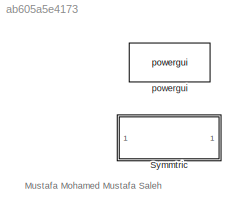
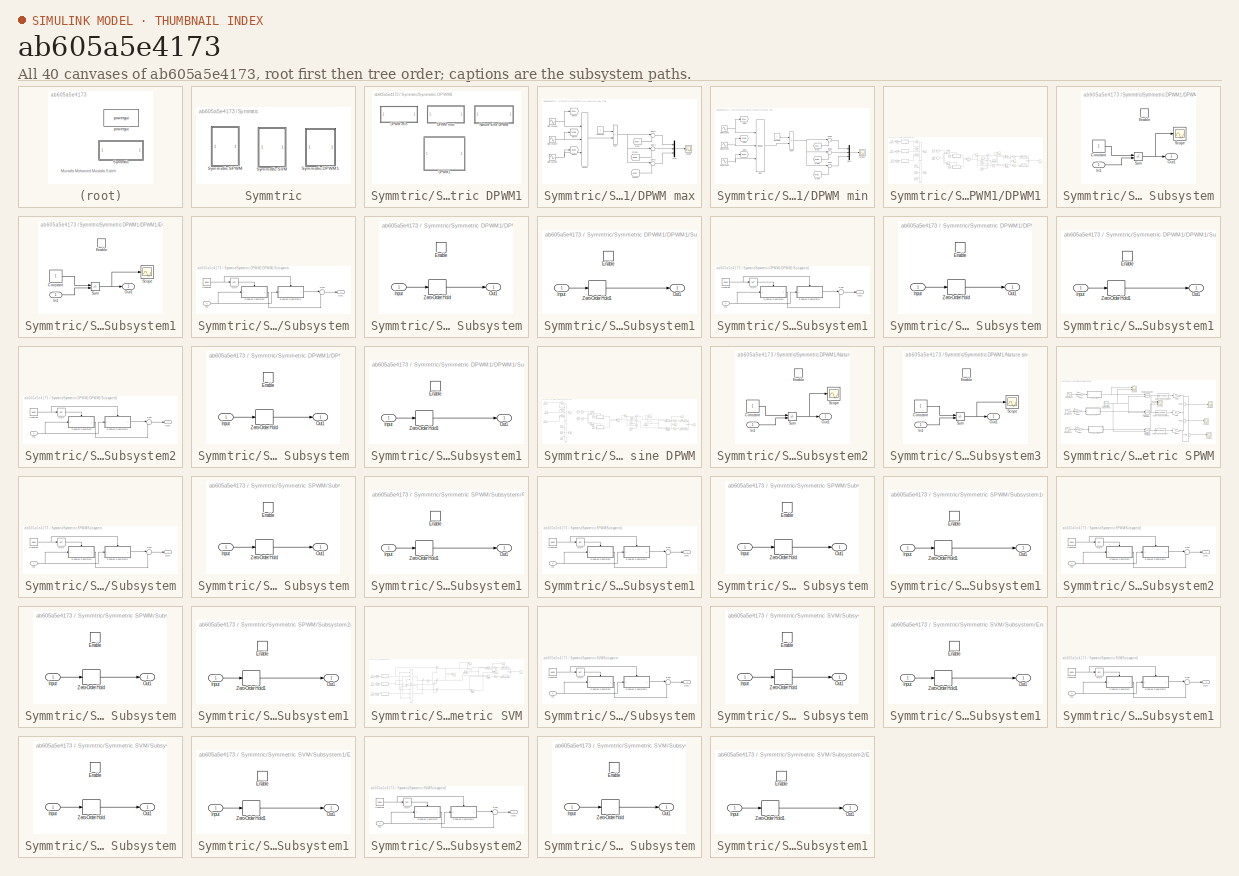
[diagram: thumbnail index - all 40 canvases of the model, root first then tree order]
MODEL slx_ab605a5e4173
KIND model
CONFIG AbsTol = auto
CONFIG EnableMultiTasking = off
CONFIG FixedStep = auto
CONFIG MaxStep = 1e-7
CONFIG MinStep = auto
CONFIG RelTol = 1e-3
CONFIG SampleTimeConstraint = Unconstrained
CONFIG SolverName = VariableStepDiscrete
CONFIG StartTime = 0.0
CONFIG StopTime = 0.06
BLOCK [SubSystem] Symmtric
  Ports = []
  RequestExecContextInheritance = off
BLOCK [SubSystem] Symmtric/Symmetric DPWM1
  Ports = []
  RequestExecContextInheritance = off
BLOCK [SubSystem] Symmtric/Symmetric DPWM1/DPWM max
  Commented = on
  Ports = []
  RequestExecContextInheritance = off
  TreatAsAtomicUnit = on
BLOCK [Constant] Symmtric/Symmetric DPWM1/DPWM max/Constant
BLOCK [From] Symmtric/Symmetric DPWM1/DPWM max/From
  GotoTag = phaA
BLOCK [From] Symmtric/Symmetric DPWM1/DPWM max/From1
  GotoTag = phaB
BLOCK [From] Symmtric/Symmetric DPWM1/DPWM max/From2
  GotoTag = phaC
BLOCK [Goto] Symmtric/Symmetric DPWM1/DPWM max/Goto5
  GotoTag = phaA
BLOCK [Goto] Symmtric/Symmetric DPWM1/DPWM max/Goto6
  GotoTag = phaB
BLOCK [Goto] Symmtric/Symmetric DPWM1/DPWM max/Goto7
  GotoTag = phaC
BLOCK [MinMax] Symmtric/Symmetric DPWM1/DPWM max/Max1
  Function = max
  Inputs = 3
  Ports = [3, 1]
BLOCK [Mux] Symmtric/Symmetric DPWM1/DPWM max/Mux
  DisplayOption = bar
  Inputs = 3
  Ports = [3, 1]
BLOCK [Scope] Symmtric/Symmetric DPWM1/DPWM max/Scope
  Floating = off
  NumInputPorts = 1
  Ports = [1]
  ScopeSpecificationString = Simulink.scopes.TimeScopeBlockCfg('CurrentConfiguration', extmgr.ConfigurationSet(extmgr.Configuration('Core','General UI',true),extmgr.Configuration('Core','Source UI',true),extmgr.Configuration('Sources','WiredSimulink',true,'DataLoggingVariableName','ScopeData1'),extmgr.Configuration('Visuals','Time Domain',true,'SerializedDisplays',{struct('MinYLimReal','-0.94856','MaxYLimReal','1.21651','YLab...<+1403ch>
BLOCK [Sin] Symmtric/Symmetric DPWM1/DPWM max/Sine Wave3
  Frequency = 2*pi*f0
  Ports = [0, 1]
  SampleTime = 0
BLOCK [Sin] Symmtric/Symmetric DPWM1/DPWM max/Sine Wave4
  Frequency = 2*pi*f0
  Phase = -2*pi/3
  Ports = [0, 1]
  SampleTime = 0
BLOCK [Sin] Symmtric/Symmetric DPWM1/DPWM max/Sine Wave5
  Frequency = 2*pi*f0
  Phase = 2*pi/3
  Ports = [0, 1]
  SampleTime = 0
BLOCK [Sum] Symmtric/Symmetric DPWM1/DPWM max/Sum
  IconShape = rectangular
  Inputs = +-
  Ports = [2, 1]
BLOCK [Sum] Symmtric/Symmetric DPWM1/DPWM max/Sum1
  Inputs = |++
  Ports = [2, 1]
BLOCK [Sum] Symmtric/Symmetric DPWM1/DPWM max/Sum2
  Inputs = |++
  Ports = [2, 1]
BLOCK [Sum] Symmtric/Symmetric DPWM1/DPWM max/Sum3
  Inputs = |++
  Ports = [2, 1]
BLOCK [SubSystem] Symmtric/Symmetric DPWM1/DPWM min
  Commented = on
  Ports = []
  RequestExecContextInheritance = off
  TreatAsAtomicUnit = on
BLOCK [Constant] Symmtric/Symmetric DPWM1/DPWM min/Constant1
BLOCK [From] Symmtric/Symmetric DPWM1/DPWM min/From
  GotoTag = phaA
BLOCK [From] Symmtric/Symmetric DPWM1/DPWM min/From1
  GotoTag = phaB
BLOCK [From] Symmtric/Symmetric DPWM1/DPWM min/From2
  GotoTag = phaC
BLOCK [Goto] Symmtric/Symmetric DPWM1/DPWM min/Goto5
  GotoTag = phaA
BLOCK [Goto] Symmtric/Symmetric DPWM1/DPWM min/Goto6
  GotoTag = phaB
BLOCK [Goto] Symmtric/Symmetric DPWM1/DPWM min/Goto7
  GotoTag = phaC
BLOCK [MinMax] Symmtric/Symmetric DPWM1/DPWM min/Min1
  Inputs = 3
  Ports = [3, 1]
BLOCK [Mux] Symmtric/Symmetric DPWM1/DPWM min/Mux1
  DisplayOption = bar
  Inputs = 3
  Ports = [3, 1]
BLOCK [Scope] Symmtric/Symmetric DPWM1/DPWM min/Scope1
  Floating = off
  NumInputPorts = 1
  Ports = [1]
  ScopeSpecificationString = Simulink.scopes.TimeScopeBlockCfg('CurrentConfiguration', extmgr.ConfigurationSet(extmgr.Configuration('Core','General UI',true),extmgr.Configuration('Core','Source UI',true),extmgr.Configuration('Sources','WiredSimulink',true,'DataLoggingVariableName','ScopeData2'),extmgr.Configuration('Visuals','Time Domain',true,'SerializedDisplays',{struct('MinYLimReal','-1.21651','MaxYLimReal','0.94856','YLab...<+1403ch>
BLOCK [Sin] Symmtric/Symmetric DPWM1/DPWM min/Sine Wave3
  Frequency = 2*pi*f0
  Ports = [0, 1]
  SampleTime = 0
BLOCK [Sin] Symmtric/Symmetric DPWM1/DPWM min/Sine Wave4
  Frequency = 2*pi*f0
  Phase = -2*pi/3
  Ports = [0, 1]
  SampleTime = 0
BLOCK [Sin] Symmtric/Symmetric DPWM1/DPWM min/Sine Wave5
  Frequency = 2*pi*f0
  Phase = 2*pi/3
  Ports = [0, 1]
  SampleTime = 0
BLOCK [Sum] Symmtric/Symmetric DPWM1/DPWM min/Sum4
  IconShape = rectangular
  Inputs = --
  Ports = [2, 1]
BLOCK [Sum] Symmtric/Symmetric DPWM1/DPWM min/Sum5
  Inputs = |++
  Ports = [2, 1]
BLOCK [Sum] Symmtric/Symmetric DPWM1/DPWM min/Sum6
  Inputs = |++
  Ports = [2, 1]
BLOCK [Sum] Symmtric/Symmetric DPWM1/DPWM min/Sum7
  Inputs = |++
  Ports = [2, 1]
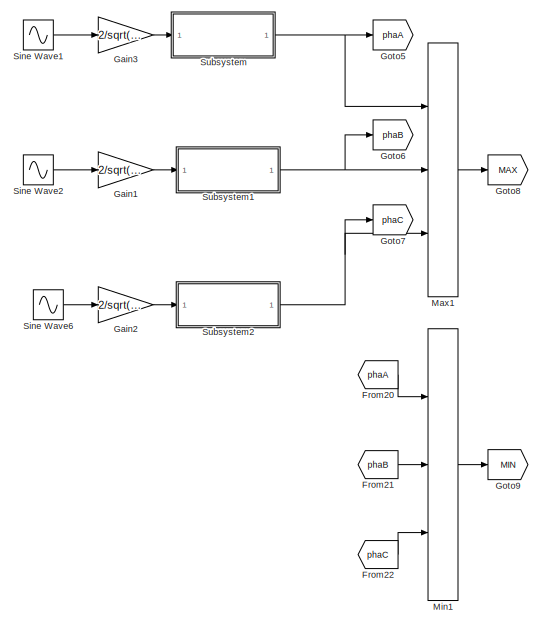
[diagram: Symmtric/Symmetric DPWM1/DPWM1 - part 1/2, left side, full height]
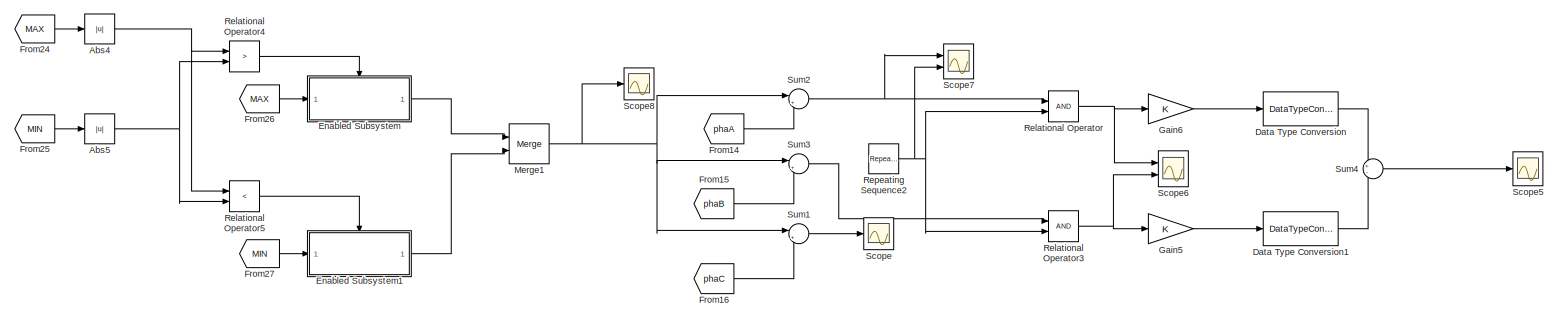
[diagram: Symmtric/Symmetric DPWM1/DPWM1 - part 2/2, central region]
BLOCK [SubSystem] Symmtric/Symmetric DPWM1/DPWM1
  Ports = []
  RequestExecContextInheritance = off
BLOCK [Abs] Symmtric/Symmetric DPWM1/DPWM1/Abs4
  SaturateOnIntegerOverflow = off
BLOCK [Abs] Symmtric/Symmetric DPWM1/DPWM1/Abs5
  SaturateOnIntegerOverflow = off
BLOCK [DataTypeConversion] Symmtric/Symmetric DPWM1/DPWM1/Data Type Conversion
  RndMeth = Floor
  SaturateOnIntegerOverflow = off
BLOCK [DataTypeConversion] Symmtric/Symmetric DPWM1/DPWM1/Data Type Conversion1
  RndMeth = Floor
  SaturateOnIntegerOverflow = off
BLOCK [SubSystem] Symmtric/Symmetric DPWM1/DPWM1/Enabled Subsystem
  Ports = [1, 1, 1]
  RequestExecContextInheritance = off
  TreatAsAtomicUnit = on
BLOCK [Constant] Symmtric/Symmetric DPWM1/DPWM1/Enabled Subsystem/Constant
BLOCK [EnablePort] Symmtric/Symmetric DPWM1/DPWM1/Enabled Subsystem/Enable
  Ports = []
BLOCK [Inport] Symmtric/Symmetric DPWM1/DPWM1/Enabled Subsystem/In1
BLOCK [Outport] Symmtric/Symmetric DPWM1/DPWM1/Enabled Subsystem/Out1
BLOCK [Scope] Symmtric/Symmetric DPWM1/DPWM1/Enabled Subsystem/Scope
  Floating = off
  NumInputPorts = 1
  Ports = [1]
  ScopeSpecificationString = Simulink.scopes.TimeScopeBlockCfg('CurrentConfiguration', extmgr.ConfigurationSet(extmgr.Configuration('Core','General UI',true),extmgr.Configuration('Core','Source UI',true),extmgr.Configuration('Sources','WiredSimulink',true,'DataLoggingVariableName','ScopeData4'),extmgr.Configuration('Visuals','Time Domain',true,'SerializedDisplays',{struct('MinYLimReal','-0.01675','MaxYLimReal','0.15072','YLab...<+1381ch>
BLOCK [Sum] Symmtric/Symmetric DPWM1/DPWM1/Enabled Subsystem/Sum
  IconShape = rectangular
  Inputs = +-
  Ports = [2, 1]
BLOCK [SubSystem] Symmtric/Symmetric DPWM1/DPWM1/Enabled Subsystem1
  Ports = [1, 1, 1]
  RequestExecContextInheritance = off
  TreatAsAtomicUnit = on
BLOCK [Constant] Symmtric/Symmetric DPWM1/DPWM1/Enabled Subsystem1/Constant
BLOCK [EnablePort] Symmtric/Symmetric DPWM1/DPWM1/Enabled Subsystem1/Enable
  Ports = []
BLOCK [Inport] Symmtric/Symmetric DPWM1/DPWM1/Enabled Subsystem1/In1
BLOCK [Outport] Symmtric/Symmetric DPWM1/DPWM1/Enabled Subsystem1/Out1
BLOCK [Scope] Symmtric/Symmetric DPWM1/DPWM1/Enabled Subsystem1/Scope
  Floating = off
  NumInputPorts = 1
  Ports = [1]
  ScopeSpecificationString = Simulink.scopes.TimeScopeBlockCfg('CurrentConfiguration', extmgr.ConfigurationSet(extmgr.Configuration('Core','General UI',true),extmgr.Configuration('Core','Source UI',true),extmgr.Configuration('Sources','WiredSimulink',true,'DataLoggingVariableName','ScopeData5'),extmgr.Configuration('Visuals','Time Domain',true),extmgr.Configuration('Tools','Plot Navigation',true),extmgr.Configuration('Tools',...<+40ch>
BLOCK [Sum] Symmtric/Symmetric DPWM1/DPWM1/Enabled Subsystem1/Sum
  IconShape = rectangular
  Inputs = --
  Ports = [2, 1]
BLOCK [From] Symmtric/Symmetric DPWM1/DPWM1/From14
  GotoTag = phaA
BLOCK [From] Symmtric/Symmetric DPWM1/DPWM1/From15
  GotoTag = phaB
BLOCK [From] Symmtric/Symmetric DPWM1/DPWM1/From16
  GotoTag = phaC
BLOCK [From] Symmtric/Symmetric DPWM1/DPWM1/From20
  GotoTag = phaA
BLOCK [From] Symmtric/Symmetric DPWM1/DPWM1/From21
  GotoTag = phaB
BLOCK [From] Symmtric/Symmetric DPWM1/DPWM1/From22
  GotoTag = phaC
BLOCK [From] Symmtric/Symmetric DPWM1/DPWM1/From24
  GotoTag = MAX
BLOCK [From] Symmtric/Symmetric DPWM1/DPWM1/From25
  GotoTag = MIN
BLOCK [From] Symmtric/Symmetric DPWM1/DPWM1/From26
  GotoTag = MAX
BLOCK [From] Symmtric/Symmetric DPWM1/DPWM1/From27
  GotoTag = MIN
BLOCK [Gain] Symmtric/Symmetric DPWM1/DPWM1/Gain1
  Gain = 2/sqrt(3)
BLOCK [Gain] Symmtric/Symmetric DPWM1/DPWM1/Gain2
  Gain = 2/sqrt(3)
BLOCK [Gain] Symmtric/Symmetric DPWM1/DPWM1/Gain3
  Gain = 2/sqrt(3)
BLOCK [Gain] Symmtric/Symmetric DPWM1/DPWM1/Gain5
BLOCK [Gain] Symmtric/Symmetric DPWM1/DPWM1/Gain6
BLOCK [Goto] Symmtric/Symmetric DPWM1/DPWM1/Goto5
  GotoTag = phaA
BLOCK [Goto] Symmtric/Symmetric DPWM1/DPWM1/Goto6
  GotoTag = phaB
BLOCK [Goto] Symmtric/Symmetric DPWM1/DPWM1/Goto7
  GotoTag = phaC
BLOCK [Goto] Symmtric/Symmetric DPWM1/DPWM1/Goto8
  GotoTag = MAX
BLOCK [Goto] Symmtric/Symmetric DPWM1/DPWM1/Goto9
  GotoTag = MIN
BLOCK [MinMax] Symmtric/Symmetric DPWM1/DPWM1/Max1
  Function = max
  Inputs = 3
  Ports = [3, 1]
BLOCK [Merge] Symmtric/Symmetric DPWM1/DPWM1/Merge1
  Ports = [2, 1]
BLOCK [MinMax] Symmtric/Symmetric DPWM1/DPWM1/Min1
  Inputs = 3
  Ports = [3, 1]
BLOCK [RelationalOperator] Symmtric/Symmetric DPWM1/DPWM1/Relational Operator
  InputSameDT = off
  OutDataTypeStr = boolean
  Ports = [2, 1]
  RndMeth = Simplest
BLOCK [RelationalOperator] Symmtric/Symmetric DPWM1/DPWM1/Relational Operator3
  InputSameDT = off
  OutDataTypeStr = boolean
  Ports = [2, 1]
  RndMeth = Simplest
BLOCK [RelationalOperator] Symmtric/Symmetric DPWM1/DPWM1/Relational Operator4
  InputSameDT = off
  Operator = >
  OutDataTypeStr = boolean
  Ports = [2, 1]
  RndMeth = Simplest
BLOCK [RelationalOperator] Symmtric/Symmetric DPWM1/DPWM1/Relational Operator5
  InputSameDT = off
  Operator = <
  OutDataTypeStr = boolean
  Ports = [2, 1]
  RndMeth = Simplest
BLOCK [Reference] Symmtric/Symmetric DPWM1/DPWM1/Repeating Sequence2  REF=simulink/Sources/Repeating
Sequence
  Ports = [0, 1]
  SourceBlock = simulink/Sources/Repeating\nSequence
  SourceProductBaseCode = SL
  SourceType = Repeating table
BLOCK [Scope] Symmtric/Symmetric DPWM1/DPWM1/Scope
  Floating = off
  NumInputPorts = 1
  Ports = [1]
  ScopeSpecificationString = Simulink.scopes.TimeScopeBlockCfg('CurrentConfiguration', extmgr.ConfigurationSet(extmgr.Configuration('Core','General UI',true),extmgr.Configuration('Core','Source UI',true),extmgr.Configuration('Sources','WiredSimulink',true,'DataLoggingVariableName','ScopeData1'),extmgr.Configuration('Visuals','Time Domain',true),extmgr.Configuration('Tools','Plot Navigation',true),extmgr.Configuration('Tools',...<+40ch>
BLOCK [Scope] Symmtric/Symmetric DPWM1/DPWM1/Scope5
  Floating = off
  NumInputPorts = 1
  Ports = [1]
  ScopeSpecificationString = Simulink.scopes.TimeScopeBlockCfg('CurrentConfiguration', extmgr.ConfigurationSet(extmgr.Configuration('Core','General UI',true),extmgr.Configuration('Core','Source UI',true),extmgr.Configuration('Sources','WiredSimulink',true,'DataLoggingVariableName','V_DWPM1_Symm','DataLogging',true,'DataLoggingSaveFormat','StructureWithTime'),extmgr.Configuration('Visuals','Time Domain',true,'SerializedDisplay...<+1491ch>
BLOCK [Scope] Symmtric/Symmetric DPWM1/DPWM1/Scope6
  Floating = off
  NumInputPorts = 2
  Ports = [2]
  ScopeSpecificationString = Simulink.scopes.TimeScopeBlockCfg('CurrentConfiguration', extmgr.ConfigurationSet(extmgr.Configuration('Core','General UI',true),extmgr.Configuration('Core','Source UI',true),extmgr.Configuration('Sources','WiredSimulink',true,'DataLoggingVariableName','ScopeData7'),extmgr.Configuration('Visuals','Time Domain',true,'SerializedDisplays',{struct('MinYLimReal','-0.125','MaxYLimReal','1.125','YLabelRe...<+2717ch>
BLOCK [Scope] Symmtric/Symmetric DPWM1/DPWM1/Scope7
  Floating = off
  NumInputPorts = 2
  Ports = [2]
  ScopeSpecificationString = Simulink.scopes.TimeScopeBlockCfg('CurrentConfiguration', extmgr.ConfigurationSet(extmgr.Configuration('Core','General UI',true),extmgr.Configuration('Core','Source UI',true),extmgr.Configuration('Sources','WiredSimulink',true,'DataLoggingVariableName','ScopeData8'),extmgr.Configuration('Visuals','Time Domain',true,'SerializedDisplays',{struct('MinYLimReal','-1.9798','MaxYLimReal','1.9798','YLabel...<+1477ch>
BLOCK [Scope] Symmtric/Symmetric DPWM1/DPWM1/Scope8
  Floating = off
  NumInputPorts = 1
  Ports = [1]
  ScopeSpecificationString = Simulink.scopes.TimeScopeBlockCfg('CurrentConfiguration', extmgr.ConfigurationSet(extmgr.Configuration('Core','General UI',true),extmgr.Configuration('Core','Source UI',true),extmgr.Configuration('Sources','WiredSimulink',true,'DataLoggingVariableName','ScopeData1'),extmgr.Configuration('Visuals','Time Domain',true,'SerializedDisplays',{struct('MinYLimReal','-0.27572','MaxYLimReal','0.27572','YLab...<+1503ch>
BLOCK [Sin] Symmtric/Symmetric DPWM1/DPWM1/Sine Wave1
  Amplitude = M
  Frequency = f0*2*pi
  Ports = [0, 1]
  SampleTime = 0
BLOCK [Sin] Symmtric/Symmetric DPWM1/DPWM1/Sine Wave2
  Amplitude = M
  Frequency = f0*2*pi
  Phase = -2*pi/3
  Ports = [0, 1]
  SampleTime = 0
BLOCK [Sin] Symmtric/Symmetric DPWM1/DPWM1/Sine Wave6
  Amplitude = M
  Frequency = f0*2*pi
  Phase = 2*pi/3
  Ports = [0, 1]
  SampleTime = 0
BLOCK [SubSystem] Symmtric/Symmetric DPWM1/DPWM1/Subsystem
  Ports = [1, 1]
  RequestExecContextInheritance = off
BLOCK [Constant] Symmtric/Symmetric DPWM1/DPWM1/Subsystem/Constant
  Value = Mode
BLOCK [SubSystem] Symmtric/Symmetric DPWM1/DPWM1/Subsystem/Enabled Subsystem
  Ports = [1, 1, 1]
  RequestExecContextInheritance = off
  TreatAsAtomicUnit = on
BLOCK [EnablePort] Symmtric/Symmetric DPWM1/DPWM1/Subsystem/Enabled Subsystem/Enable
  Ports = []
BLOCK [Inport] Symmtric/Symmetric DPWM1/DPWM1/Subsystem/Enabled Subsystem/Input
BLOCK [Outport] Symmtric/Symmetric DPWM1/DPWM1/Subsystem/Enabled Subsystem/Out1
BLOCK [ZeroOrderHold] Symmtric/Symmetric DPWM1/DPWM1/Subsystem/Enabled Subsystem/Zero-Order Hold
  SampleTime = 1/(fs)
BLOCK [SubSystem] Symmtric/Symmetric DPWM1/DPWM1/Subsystem/Enabled Subsystem1
  Ports = [1, 1, 1]
  RequestExecContextInheritance = off
  TreatAsAtomicUnit = on
BLOCK [EnablePort] Symmtric/Symmetric DPWM1/DPWM1/Subsystem/Enabled Subsystem1/Enable
  Ports = []
BLOCK [Inport] Symmtric/Symmetric DPWM1/DPWM1/Subsystem/Enabled Subsystem1/Input
BLOCK [Outport] Symmtric/Symmetric DPWM1/DPWM1/Subsystem/Enabled Subsystem1/Out1
BLOCK [ZeroOrderHold] Symmtric/Symmetric DPWM1/DPWM1/Subsystem/Enabled Subsystem1/Zero-Order Hold1
  SampleTime = 1/(2*fs)
BLOCK [Inport] Symmtric/Symmetric DPWM1/DPWM1/Subsystem/In1
BLOCK [Logic] Symmtric/Symmetric DPWM1/DPWM1/Subsystem/NOT
  AllPortsSameDT = off
  IconShape = distinctive
  Operator = NOT
  OutDataTypeStr = boolean
  Ports = [1, 1]
BLOCK [Outport] Symmtric/Symmetric DPWM1/DPWM1/Subsystem/Out1
BLOCK [Sum] Symmtric/Symmetric DPWM1/DPWM1/Subsystem/Sum
  Inputs = |++
  Ports = [2, 1]
BLOCK [SubSystem] Symmtric/Symmetric DPWM1/DPWM1/Subsystem1
  Ports = [1, 1]
  RequestExecContextInheritance = off
BLOCK [Constant] Symmtric/Symmetric DPWM1/DPWM1/Subsystem1/Constant
  Value = Mode
BLOCK [SubSystem] Symmtric/Symmetric DPWM1/DPWM1/Subsystem1/Enabled Subsystem
  Ports = [1, 1, 1]
  RequestExecContextInheritance = off
  TreatAsAtomicUnit = on
BLOCK [EnablePort] Symmtric/Symmetric DPWM1/DPWM1/Subsystem1/Enabled Subsystem/Enable
  Ports = []
BLOCK [Inport] Symmtric/Symmetric DPWM1/DPWM1/Subsystem1/Enabled Subsystem/Input
BLOCK [Outport] Symmtric/Symmetric DPWM1/DPWM1/Subsystem1/Enabled Subsystem/Out1
BLOCK [ZeroOrderHold] Symmtric/Symmetric DPWM1/DPWM1/Subsystem1/Enabled Subsystem/Zero-Order Hold
  SampleTime = 1/(fs)
BLOCK [SubSystem] Symmtric/Symmetric DPWM1/DPWM1/Subsystem1/Enabled Subsystem1
  Ports = [1, 1, 1]
  RequestExecContextInheritance = off
  TreatAsAtomicUnit = on
BLOCK [EnablePort] Symmtric/Symmetric DPWM1/DPWM1/Subsystem1/Enabled Subsystem1/Enable
  Ports = []
BLOCK [Inport] Symmtric/Symmetric DPWM1/DPWM1/Subsystem1/Enabled Subsystem1/Input
BLOCK [Outport] Symmtric/Symmetric DPWM1/DPWM1/Subsystem1/Enabled Subsystem1/Out1
BLOCK [ZeroOrderHold] Symmtric/Symmetric DPWM1/DPWM1/Subsystem1/Enabled Subsystem1/Zero-Order Hold1
  SampleTime = 1/(2*fs)
BLOCK [Inport] Symmtric/Symmetric DPWM1/DPWM1/Subsystem1/In1
BLOCK [Logic] Symmtric/Symmetric DPWM1/DPWM1/Subsystem1/NOT
  AllPortsSameDT = off
  IconShape = distinctive
  Operator = NOT
  OutDataTypeStr = boolean
  Ports = [1, 1]
BLOCK [Outport] Symmtric/Symmetric DPWM1/DPWM1/Subsystem1/Out1
BLOCK [Sum] Symmtric/Symmetric DPWM1/DPWM1/Subsystem1/Sum
  Inputs = |++
  Ports = [2, 1]
BLOCK [SubSystem] Symmtric/Symmetric DPWM1/DPWM1/Subsystem2
  Ports = [1, 1]
  RequestExecContextInheritance = off
BLOCK [Constant] Symmtric/Symmetric DPWM1/DPWM1/Subsystem2/Constant
  Value = Mode
BLOCK [SubSystem] Symmtric/Symmetric DPWM1/DPWM1/Subsystem2/Enabled Subsystem
  Ports = [1, 1, 1]
  RequestExecContextInheritance = off
  TreatAsAtomicUnit = on
BLOCK [EnablePort] Symmtric/Symmetric DPWM1/DPWM1/Subsystem2/Enabled Subsystem/Enable
  Ports = []
BLOCK [Inport] Symmtric/Symmetric DPWM1/DPWM1/Subsystem2/Enabled Subsystem/Input
BLOCK [Outport] Symmtric/Symmetric DPWM1/DPWM1/Subsystem2/Enabled Subsystem/Out1
BLOCK [ZeroOrderHold] Symmtric/Symmetric DPWM1/DPWM1/Subsystem2/Enabled Subsystem/Zero-Order Hold
  SampleTime = 1/(fs)
BLOCK [SubSystem] Symmtric/Symmetric DPWM1/DPWM1/Subsystem2/Enabled Subsystem1
  Ports = [1, 1, 1]
  RequestExecContextInheritance = off
  TreatAsAtomicUnit = on
BLOCK [EnablePort] Symmtric/Symmetric DPWM1/DPWM1/Subsystem2/Enabled Subsystem1/Enable
  Ports = []
BLOCK [Inport] Symmtric/Symmetric DPWM1/DPWM1/Subsystem2/Enabled Subsystem1/Input
BLOCK [Outport] Symmtric/Symmetric DPWM1/DPWM1/Subsystem2/Enabled Subsystem1/Out1
BLOCK [ZeroOrderHold] Symmtric/Symmetric DPWM1/DPWM1/Subsystem2/Enabled Subsystem1/Zero-Order Hold1
  SampleTime = 1/(2*fs)
BLOCK [Inport] Symmtric/Symmetric DPWM1/DPWM1/Subsystem2/In1
BLOCK [Logic] Symmtric/Symmetric DPWM1/DPWM1/Subsystem2/NOT
  AllPortsSameDT = off
  IconShape = distinctive
  Operator = NOT
  OutDataTypeStr = boolean
  Ports = [1, 1]
BLOCK [Outport] Symmtric/Symmetric DPWM1/DPWM1/Subsystem2/Out1
BLOCK [Sum] Symmtric/Symmetric DPWM1/DPWM1/Subsystem2/Sum
  Inputs = |++
  Ports = [2, 1]
BLOCK [Sum] Symmtric/Symmetric DPWM1/DPWM1/Sum1
  Inputs = |++
  Ports = [2, 1]
BLOCK [Sum] Symmtric/Symmetric DPWM1/DPWM1/Sum2
  Inputs = |++
  Ports = [2, 1]
BLOCK [Sum] Symmtric/Symmetric DPWM1/DPWM1/Sum3
  Inputs = |++
  Ports = [2, 1]
BLOCK [Sum] Symmtric/Symmetric DPWM1/DPWM1/Sum4
  Inputs = +-
  Ports = [2, 1]
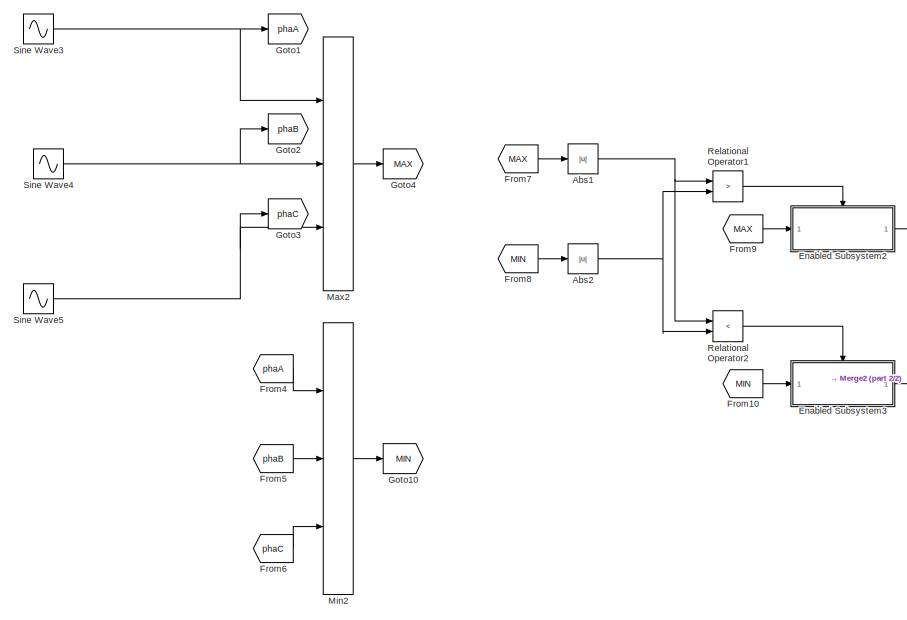
[diagram: Symmtric/Symmetric DPWM1/Nature sine DPWM - part 1/2, left side, full height]
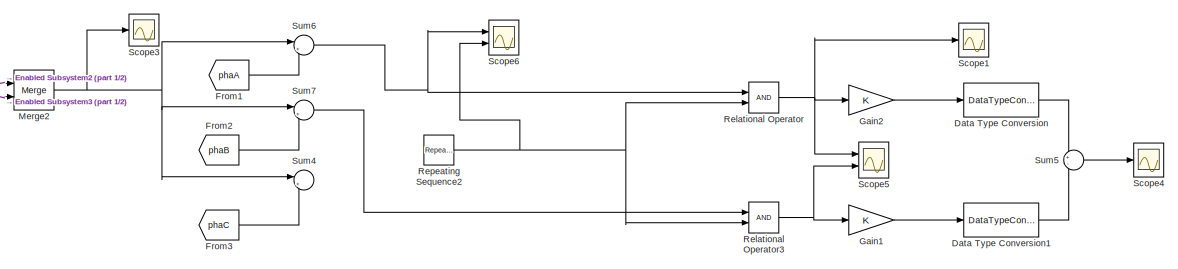
[diagram: Symmtric/Symmetric DPWM1/Nature sine DPWM - part 2/2, middle right region]
BLOCK [SubSystem] Symmtric/Symmetric DPWM1/Nature sine DPWM
  Commented = on
  Ports = []
  RequestExecContextInheritance = off
BLOCK [Abs] Symmtric/Symmetric DPWM1/Nature sine DPWM/Abs1
  SaturateOnIntegerOverflow = off
BLOCK [Abs] Symmtric/Symmetric DPWM1/Nature sine DPWM/Abs2
  SaturateOnIntegerOverflow = off
BLOCK [DataTypeConversion] Symmtric/Symmetric DPWM1/Nature sine DPWM/Data Type Conversion
  RndMeth = Floor
  SaturateOnIntegerOverflow = off
BLOCK [DataTypeConversion] Symmtric/Symmetric DPWM1/Nature sine DPWM/Data Type Conversion1
  RndMeth = Floor
  SaturateOnIntegerOverflow = off
BLOCK [SubSystem] Symmtric/Symmetric DPWM1/Nature sine DPWM/Enabled Subsystem2
  Ports = [1, 1, 1]
  RequestExecContextInheritance = off
  TreatAsAtomicUnit = on
BLOCK [Constant] Symmtric/Symmetric DPWM1/Nature sine DPWM/Enabled Subsystem2/Constant
BLOCK [EnablePort] Symmtric/Symmetric DPWM1/Nature sine DPWM/Enabled Subsystem2/Enable
  Ports = []
BLOCK [Inport] Symmtric/Symmetric DPWM1/Nature sine DPWM/Enabled Subsystem2/In1
BLOCK [Outport] Symmtric/Symmetric DPWM1/Nature sine DPWM/Enabled Subsystem2/Out1
BLOCK [Scope] Symmtric/Symmetric DPWM1/Nature sine DPWM/Enabled Subsystem2/Scope
  Floating = off
  NumInputPorts = 1
  Ports = [1]
  ScopeSpecificationString = Simulink.scopes.TimeScopeBlockCfg('CurrentConfiguration', extmgr.ConfigurationSet(extmgr.Configuration('Core','General UI',true),extmgr.Configuration('Core','Source UI',true),extmgr.Configuration('Sources','WiredSimulink',true,'DataLoggingVariableName','ScopeData4'),extmgr.Configuration('Visuals','Time Domain',true,'SerializedDisplays',{struct('MinYLimReal','-0.01675','MaxYLimReal','0.15072','YLab...<+1381ch>
BLOCK [Sum] Symmtric/Symmetric DPWM1/Nature sine DPWM/Enabled Subsystem2/Sum
  IconShape = rectangular
  Inputs = +-
  Ports = [2, 1]
BLOCK [SubSystem] Symmtric/Symmetric DPWM1/Nature sine DPWM/Enabled Subsystem3
  Ports = [1, 1, 1]
  RequestExecContextInheritance = off
  TreatAsAtomicUnit = on
BLOCK [Constant] Symmtric/Symmetric DPWM1/Nature sine DPWM/Enabled Subsystem3/Constant
BLOCK [EnablePort] Symmtric/Symmetric DPWM1/Nature sine DPWM/Enabled Subsystem3/Enable
  Ports = []
BLOCK [Inport] Symmtric/Symmetric DPWM1/Nature sine DPWM/Enabled Subsystem3/In1
BLOCK [Outport] Symmtric/Symmetric DPWM1/Nature sine DPWM/Enabled Subsystem3/Out1
BLOCK [Scope] Symmtric/Symmetric DPWM1/Nature sine DPWM/Enabled Subsystem3/Scope
  Floating = off
  NumInputPorts = 1
  Ports = [1]
  ScopeSpecificationString = Simulink.scopes.TimeScopeBlockCfg('CurrentConfiguration', extmgr.ConfigurationSet(extmgr.Configuration('Core','General UI',true),extmgr.Configuration('Core','Source UI',true),extmgr.Configuration('Sources','WiredSimulink',true,'DataLoggingVariableName','ScopeData5'),extmgr.Configuration('Visuals','Time Domain',true),extmgr.Configuration('Tools','Plot Navigation',true),extmgr.Configuration('Tools',...<+40ch>
BLOCK [Sum] Symmtric/Symmetric DPWM1/Nature sine DPWM/Enabled Subsystem3/Sum
  IconShape = rectangular
  Inputs = --
  Ports = [2, 1]
BLOCK [From] Symmtric/Symmetric DPWM1/Nature sine DPWM/From1
  GotoTag = phaA
BLOCK [From] Symmtric/Symmetric DPWM1/Nature sine DPWM/From10
  GotoTag = MIN
BLOCK [From] Symmtric/Symmetric DPWM1/Nature sine DPWM/From2
  GotoTag = phaB
BLOCK [From] Symmtric/Symmetric DPWM1/Nature sine DPWM/From3
  GotoTag = phaC
BLOCK [From] Symmtric/Symmetric DPWM1/Nature sine DPWM/From4
  GotoTag = phaA
BLOCK [From] Symmtric/Symmetric DPWM1/Nature sine DPWM/From5
  GotoTag = phaB
BLOCK [From] Symmtric/Symmetric DPWM1/Nature sine DPWM/From6
  GotoTag = phaC
BLOCK [From] Symmtric/Symmetric DPWM1/Nature sine DPWM/From7
  GotoTag = MAX
BLOCK [From] Symmtric/Symmetric DPWM1/Nature sine DPWM/From8
  GotoTag = MIN
BLOCK [From] Symmtric/Symmetric DPWM1/Nature sine DPWM/From9
  GotoTag = MAX
BLOCK [Gain] Symmtric/Symmetric DPWM1/Nature sine DPWM/Gain1
BLOCK [Gain] Symmtric/Symmetric DPWM1/Nature sine DPWM/Gain2
BLOCK [Goto] Symmtric/Symmetric DPWM1/Nature sine DPWM/Goto1
  GotoTag = phaA
BLOCK [Goto] Symmtric/Symmetric DPWM1/Nature sine DPWM/Goto10
  GotoTag = MIN
BLOCK [Goto] Symmtric/Symmetric DPWM1/Nature sine DPWM/Goto2
  GotoTag = phaB
BLOCK [Goto] Symmtric/Symmetric DPWM1/Nature sine DPWM/Goto3
  GotoTag = phaC
BLOCK [Goto] Symmtric/Symmetric DPWM1/Nature sine DPWM/Goto4
  GotoTag = MAX
BLOCK [MinMax] Symmtric/Symmetric DPWM1/Nature sine DPWM/Max2
  Function = max
  Inputs = 3
  Ports = [3, 1]
BLOCK [Merge] Symmtric/Symmetric DPWM1/Nature sine DPWM/Merge2
  Ports = [2, 1]
BLOCK [MinMax] Symmtric/Symmetric DPWM1/Nature sine DPWM/Min2
  Inputs = 3
  Ports = [3, 1]
BLOCK [RelationalOperator] Symmtric/Symmetric DPWM1/Nature sine DPWM/Relational Operator
  InputSameDT = off
  OutDataTypeStr = boolean
  Ports = [2, 1]
  RndMeth = Simplest
BLOCK [RelationalOperator] Symmtric/Symmetric DPWM1/Nature sine DPWM/Relational Operator1
  InputSameDT = off
  Operator = >
  OutDataTypeStr = boolean
  Ports = [2, 1]
  RndMeth = Simplest
BLOCK [RelationalOperator] Symmtric/Symmetric DPWM1/Nature sine DPWM/Relational Operator2
  InputSameDT = off
  Operator = <
  OutDataTypeStr = boolean
  Ports = [2, 1]
  RndMeth = Simplest
BLOCK [RelationalOperator] Symmtric/Symmetric DPWM1/Nature sine DPWM/Relational Operator3
  InputSameDT = off
  OutDataTypeStr = boolean
  Ports = [2, 1]
  RndMeth = Simplest
BLOCK [Reference] Symmtric/Symmetric DPWM1/Nature sine DPWM/Repeating Sequence2  REF=simulink/Sources/Repeating
Sequence
  Ports = [0, 1]
  SourceBlock = simulink/Sources/Repeating\nSequence
  SourceProductBaseCode = SL
  SourceType = Repeating table
BLOCK [Scope] Symmtric/Symmetric DPWM1/Nature sine DPWM/Scope1
  Floating = off
  NumInputPorts = 1
  Ports = [1]
  ScopeSpecificationString = Simulink.scopes.TimeScopeBlockCfg('CurrentConfiguration', extmgr.ConfigurationSet(extmgr.Configuration('Core','General UI',true),extmgr.Configuration('Core','Source UI',true),extmgr.Configuration('Sources','WiredSimulink',true,'DataLoggingVariableName','ScopeData1','DataLogging',true,'DataLoggingSaveFormat','StructureWithTime'),extmgr.Configuration('Visuals','Time Domain',true,'SerializedDisplays'...<+1530ch>
BLOCK [Scope] Symmtric/Symmetric DPWM1/Nature sine DPWM/Scope3
  Floating = off
  NumInputPorts = 1
  Ports = [1]
  ScopeSpecificationString = Simulink.scopes.TimeScopeBlockCfg('CurrentConfiguration', extmgr.ConfigurationSet(extmgr.Configuration('Core','General UI',true),extmgr.Configuration('Core','Source UI',true),extmgr.Configuration('Sources','WiredSimulink',true,'DataLoggingVariableName','ScopeData9'),extmgr.Configuration('Visuals','Time Domain',true,'SerializedDisplays',{struct('MinYLimReal','-0.16747','MaxYLimReal','0.16747','YLab...<+1422ch>
BLOCK [Scope] Symmtric/Symmetric DPWM1/Nature sine DPWM/Scope4
  Floating = off
  NumInputPorts = 1
  Ports = [1]
  ScopeSpecificationString = Simulink.scopes.TimeScopeBlockCfg('CurrentConfiguration', extmgr.ConfigurationSet(extmgr.Configuration('Core','General UI',true),extmgr.Configuration('Core','Source UI',true),extmgr.Configuration('Sources','WiredSimulink',true,'DataLoggingVariableName','ScopeData2','DataLogging',true,'DataLoggingSaveFormat','StructureWithTime'),extmgr.Configuration('Visuals','Time Domain',true,'SerializedDisplays'...<+1515ch>
BLOCK [Scope] Symmtric/Symmetric DPWM1/Nature sine DPWM/Scope5
  Floating = off
  NumInputPorts = 2
  Ports = [2]
  ScopeSpecificationString = Simulink.scopes.TimeScopeBlockCfg('CurrentConfiguration', extmgr.ConfigurationSet(extmgr.Configuration('Core','General UI',true),extmgr.Configuration('Core','Source UI',true),extmgr.Configuration('Sources','WiredSimulink',true,'DataLoggingVariableName','ScopeData3'),extmgr.Configuration('Visuals','Time Domain',true,'SerializedDisplays',{struct('MinYLimReal','-0.125','MaxYLimReal','1.125','YLabelRe...<+2678ch>
BLOCK [Scope] Symmtric/Symmetric DPWM1/Nature sine DPWM/Scope6
  Floating = off
  NumInputPorts = 2
  Ports = [2]
  ScopeSpecificationString = Simulink.scopes.TimeScopeBlockCfg('CurrentConfiguration', extmgr.ConfigurationSet(extmgr.Configuration('Core','General UI',true),extmgr.Configuration('Core','Source UI',true),extmgr.Configuration('Sources','WiredSimulink',true,'DataLoggingVariableName','ScopeData4'),extmgr.Configuration('Visuals','Time Domain',true,'SerializedDisplays',{struct('MinYLimReal','-1.25','MaxYLimReal','1.25','YLabelReal...<+1465ch>
BLOCK [Sin] Symmtric/Symmetric DPWM1/Nature sine DPWM/Sine Wave3
  Amplitude = M
  Frequency = f0*2*pi
  Ports = [0, 1]
  SampleTime = 0
BLOCK [Sin] Symmtric/Symmetric DPWM1/Nature sine DPWM/Sine Wave4
  Amplitude = M
  Frequency = f0*2*pi
  Phase = -2*pi/3
  Ports = [0, 1]
  SampleTime = 0
BLOCK [Sin] Symmtric/Symmetric DPWM1/Nature sine DPWM/Sine Wave5
  Amplitude = M
  Frequency = f0*2*pi
  Phase = 2*pi/3
  Ports = [0, 1]
  SampleTime = 0
BLOCK [Sum] Symmtric/Symmetric DPWM1/Nature sine DPWM/Sum4
  Inputs = |++
  Ports = [2, 1]
BLOCK [Sum] Symmtric/Symmetric DPWM1/Nature sine DPWM/Sum5
  Inputs = +-
  Ports = [2, 1]
BLOCK [Sum] Symmtric/Symmetric DPWM1/Nature sine DPWM/Sum6
  Inputs = |++
  Ports = [2, 1]
BLOCK [Sum] Symmtric/Symmetric DPWM1/Nature sine DPWM/Sum7
  Inputs = |++
  Ports = [2, 1]
BLOCK [SubSystem] Symmtric/Symmetric SPWM
  Ports = []
  RequestExecContextInheritance = off
BLOCK [DataTypeConversion] Symmtric/Symmetric SPWM/Data Type Conversion1
  RndMeth = Floor
  SaturateOnIntegerOverflow = off
BLOCK [DataTypeConversion] Symmtric/Symmetric SPWM/Data Type Conversion3
  RndMeth = Floor
  SaturateOnIntegerOverflow = off
BLOCK [DataTypeConversion] Symmtric/Symmetric SPWM/Data Type Conversion4
  RndMeth = Floor
  SaturateOnIntegerOverflow = off
BLOCK [Gain] Symmtric/Symmetric SPWM/Gain
BLOCK [Gain] Symmtric/Symmetric SPWM/Gain1
  OutDataTypeStr = Inherit: Inherit via back propagation
BLOCK [Gain] Symmtric/Symmetric SPWM/Gain2
BLOCK [Gain] Symmtric/Symmetric SPWM/Gain3
  Gain = 2/sqrt(3)
BLOCK [Gain] Symmtric/Symmetric SPWM/Gain4
  Gain = 2/sqrt(3)
BLOCK [Gain] Symmtric/Symmetric SPWM/Gain5
  Gain = 2/sqrt(3)
BLOCK [RelationalOperator] Symmtric/Symmetric SPWM/Relational Operator
  InputSameDT = off
  OutDataTypeStr = boolean
  Ports = [2, 1]
  RndMeth = Simplest
BLOCK [RelationalOperator] Symmtric/Symmetric SPWM/Relational Operator1
  InputSameDT = off
  OutDataTypeStr = boolean
  Ports = [2, 1]
  RndMeth = Simplest
BLOCK [RelationalOperator] Symmtric/Symmetric SPWM/Relational Operator2
  InputSameDT = off
  OutDataTypeStr = boolean
  Ports = [2, 1]
  RndMeth = Simplest
BLOCK [Reference] Symmtric/Symmetric SPWM/Repeating Sequence2  REF=simulink/Sources/Repeating
Sequence
  Ports = [0, 1]
  SourceBlock = simulink/Sources/Repeating\nSequence
  SourceProductBaseCode = SL
  SourceType = Repeating table
BLOCK [Scope] Symmtric/Symmetric SPWM/Scope1
  Floating = off
  NumInputPorts = 1
  Ports = [1]
  ScopeSpecificationString = Simulink.scopes.TimeScopeBlockCfg('CurrentConfiguration', extmgr.ConfigurationSet(extmgr.Configuration('Core','General UI',true),extmgr.Configuration('Core','Source UI',true),extmgr.Configuration('Sources','WiredSimulink',true,'DataLoggingVariableName','V_SPWM_Symm','DataLogging',true,'DataLoggingSaveFormat','StructureWithTime'),extmgr.Configuration('Visuals','Time Domain',true,'SerializedDisplays...<+1482ch>
BLOCK [Scope] Symmtric/Symmetric SPWM/Scope2
  Floating = off
  NumInputPorts = 1
  Ports = [1]
  ScopeSpecificationString = Simulink.scopes.TimeScopeBlockCfg('CurrentConfiguration', extmgr.ConfigurationSet(extmgr.Configuration('Core','General UI',true),extmgr.Configuration('Core','Source UI',true),extmgr.Configuration('Sources','WiredSimulink',true,'DataLoggingVariableName','V_SPWM_Symm1'),extmgr.Configuration('Visuals','Time Domain',true,'SerializedDisplays',{struct('MinYLimReal','-250.00000','MaxYLimReal','250.00000'...<+1460ch>
BLOCK [Scope] Symmtric/Symmetric SPWM/Scope3
  Floating = off
  NumInputPorts = 1
  Ports = [1]
  ScopeSpecificationString = Simulink.scopes.TimeScopeBlockCfg('CurrentConfiguration', extmgr.ConfigurationSet(extmgr.Configuration('Core','General UI',true),extmgr.Configuration('Core','Source UI',true),extmgr.Configuration('Sources','WiredSimulink',true,'DataLoggingVariableName','ScopeData1'),extmgr.Configuration('Visuals','Time Domain',true,'SerializedDisplays',{struct('MinYLimReal','-250.00000','MaxYLimReal','250.00000','...<+1458ch>
BLOCK [Scope] Symmtric/Symmetric SPWM/Scope5
  Floating = off
  NumInputPorts = 2
  Ports = [2]
  ScopeSpecificationString = Simulink.scopes.TimeScopeBlockCfg('CurrentConfiguration', extmgr.ConfigurationSet(extmgr.Configuration('Core','General UI',true),extmgr.Configuration('Core','Source UI',true),extmgr.Configuration('Sources','WiredSimulink',true,'DataLoggingVariableName','ScopeData7'),extmgr.Configuration('Visuals','Time Domain',true,'SerializedDisplays',{struct('MinYLimReal','-1.54547','MaxYLimReal','1.54547','YLab...<+1515ch>
BLOCK [Scope] Symmtric/Symmetric SPWM/Scope8
  Floating = off
  NumInputPorts = 3
  Ports = [3]
  ScopeSpecificationString = Simulink.scopes.TimeScopeBlockCfg('CurrentConfiguration', extmgr.ConfigurationSet(extmgr.Configuration('Core','General UI',true),extmgr.Configuration('Core','Source UI',true),extmgr.Configuration('Sources','WiredSimulink',true,'DataLoggingVariableName','ScopeData7'),extmgr.Configuration('Visuals','Time Domain',true,'SerializedDisplays',{struct('MinYLimReal','-0.125','MaxYLimReal','1.125','YLabelRe...<+2810ch>
BLOCK [Sin] Symmtric/Symmetric SPWM/Sine Wave1
  Amplitude = M
  Frequency = f0*2*pi
  Phase = 2*pi/3
  Ports = [0, 1]
  SampleTime = 0
BLOCK [Sin] Symmtric/Symmetric SPWM/Sine Wave2
  Amplitude = M
  Frequency = f0*2*pi
  Ports = [0, 1]
  SampleTime = 0
BLOCK [Sin] Symmtric/Symmetric SPWM/Sine Wave3
  Amplitude = M
  Frequency = f0*2*pi
  Phase = -2*pi/3
  Ports = [0, 1]
  SampleTime = 0
BLOCK [SubSystem] Symmtric/Symmetric SPWM/Subsystem
  Ports = [1, 1]
  RequestExecContextInheritance = off
BLOCK [Constant] Symmtric/Symmetric SPWM/Subsystem/Constant
  Value = Mode
BLOCK [SubSystem] Symmtric/Symmetric SPWM/Subsystem/Enabled Subsystem
  Ports = [1, 1, 1]
  RequestExecContextInheritance = off
  TreatAsAtomicUnit = on
BLOCK [EnablePort] Symmtric/Symmetric SPWM/Subsystem/Enabled Subsystem/Enable
  Ports = []
BLOCK [Inport] Symmtric/Symmetric SPWM/Subsystem/Enabled Subsystem/Input
BLOCK [Outport] Symmtric/Symmetric SPWM/Subsystem/Enabled Subsystem/Out1
BLOCK [ZeroOrderHold] Symmtric/Symmetric SPWM/Subsystem/Enabled Subsystem/Zero-Order Hold
  SampleTime = 1/(fs)
BLOCK [SubSystem] Symmtric/Symmetric SPWM/Subsystem/Enabled Subsystem1
  Ports = [1, 1, 1]
  RequestExecContextInheritance = off
  TreatAsAtomicUnit = on
BLOCK [EnablePort] Symmtric/Symmetric SPWM/Subsystem/Enabled Subsystem1/Enable
  Ports = []
BLOCK [Inport] Symmtric/Symmetric SPWM/Subsystem/Enabled Subsystem1/Input
BLOCK [Outport] Symmtric/Symmetric SPWM/Subsystem/Enabled Subsystem1/Out1
BLOCK [ZeroOrderHold] Symmtric/Symmetric SPWM/Subsystem/Enabled Subsystem1/Zero-Order Hold1
  SampleTime = 1/(2*fs)
BLOCK [Inport] Symmtric/Symmetric SPWM/Subsystem/In1
BLOCK [Logic] Symmtric/Symmetric SPWM/Subsystem/NOT
  AllPortsSameDT = off
  IconShape = distinctive
  Operator = NOT
  OutDataTypeStr = boolean
  Ports = [1, 1]
BLOCK [Outport] Symmtric/Symmetric SPWM/Subsystem/Out1
BLOCK [Sum] Symmtric/Symmetric SPWM/Subsystem/Sum
  Inputs = |++
  Ports = [2, 1]
BLOCK [SubSystem] Symmtric/Symmetric SPWM/Subsystem1
  Ports = [1, 1]
  RequestExecContextInheritance = off
BLOCK [Constant] Symmtric/Symmetric SPWM/Subsystem1/Constant
  Value = Mode
BLOCK [SubSystem] Symmtric/Symmetric SPWM/Subsystem1/Enabled Subsystem
  Ports = [1, 1, 1]
  RequestExecContextInheritance = off
  TreatAsAtomicUnit = on
BLOCK [EnablePort] Symmtric/Symmetric SPWM/Subsystem1/Enabled Subsystem/Enable
  Ports = []
BLOCK [Inport] Symmtric/Symmetric SPWM/Subsystem1/Enabled Subsystem/Input
BLOCK [Outport] Symmtric/Symmetric SPWM/Subsystem1/Enabled Subsystem/Out1
BLOCK [ZeroOrderHold] Symmtric/Symmetric SPWM/Subsystem1/Enabled Subsystem/Zero-Order Hold
  SampleTime = 1/(fs)
BLOCK [SubSystem] Symmtric/Symmetric SPWM/Subsystem1/Enabled Subsystem1
  Ports = [1, 1, 1]
  RequestExecContextInheritance = off
  TreatAsAtomicUnit = on
BLOCK [EnablePort] Symmtric/Symmetric SPWM/Subsystem1/Enabled Subsystem1/Enable
  Ports = []
BLOCK [Inport] Symmtric/Symmetric SPWM/Subsystem1/Enabled Subsystem1/Input
BLOCK [Outport] Symmtric/Symmetric SPWM/Subsystem1/Enabled Subsystem1/Out1
BLOCK [ZeroOrderHold] Symmtric/Symmetric SPWM/Subsystem1/Enabled Subsystem1/Zero-Order Hold1
  SampleTime = 1/(2*fs)
BLOCK [Inport] Symmtric/Symmetric SPWM/Subsystem1/In1
BLOCK [Logic] Symmtric/Symmetric SPWM/Subsystem1/NOT
  AllPortsSameDT = off
  IconShape = distinctive
  Operator = NOT
  OutDataTypeStr = boolean
  Ports = [1, 1]
BLOCK [Outport] Symmtric/Symmetric SPWM/Subsystem1/Out1
BLOCK [Sum] Symmtric/Symmetric SPWM/Subsystem1/Sum
  Inputs = |++
  Ports = [2, 1]
BLOCK [SubSystem] Symmtric/Symmetric SPWM/Subsystem2
  Ports = [1, 1]
  RequestExecContextInheritance = off
BLOCK [Constant] Symmtric/Symmetric SPWM/Subsystem2/Constant
  Value = Mode
BLOCK [SubSystem] Symmtric/Symmetric SPWM/Subsystem2/Enabled Subsystem
  Ports = [1, 1, 1]
  RequestExecContextInheritance = off
  TreatAsAtomicUnit = on
BLOCK [EnablePort] Symmtric/Symmetric SPWM/Subsystem2/Enabled Subsystem/Enable
  Ports = []
BLOCK [Inport] Symmtric/Symmetric SPWM/Subsystem2/Enabled Subsystem/Input
BLOCK [Outport] Symmtric/Symmetric SPWM/Subsystem2/Enabled Subsystem/Out1
BLOCK [ZeroOrderHold] Symmtric/Symmetric SPWM/Subsystem2/Enabled Subsystem/Zero-Order Hold
  SampleTime = 1/(fs)
BLOCK [SubSystem] Symmtric/Symmetric SPWM/Subsystem2/Enabled Subsystem1
  Ports = [1, 1, 1]
  RequestExecContextInheritance = off
  TreatAsAtomicUnit = on
BLOCK [EnablePort] Symmtric/Symmetric SPWM/Subsystem2/Enabled Subsystem1/Enable
  Ports = []
BLOCK [Inport] Symmtric/Symmetric SPWM/Subsystem2/Enabled Subsystem1/Input
BLOCK [Outport] Symmtric/Symmetric SPWM/Subsystem2/Enabled Subsystem1/Out1
BLOCK [ZeroOrderHold] Symmtric/Symmetric SPWM/Subsystem2/Enabled Subsystem1/Zero-Order Hold1
  SampleTime = 1/(2*fs)
BLOCK [Inport] Symmtric/Symmetric SPWM/Subsystem2/In1
BLOCK [Logic] Symmtric/Symmetric SPWM/Subsystem2/NOT
  AllPortsSameDT = off
  IconShape = distinctive
  Operator = NOT
  OutDataTypeStr = boolean
  Ports = [1, 1]
BLOCK [Outport] Symmtric/Symmetric SPWM/Subsystem2/Out1
BLOCK [Sum] Symmtric/Symmetric SPWM/Subsystem2/Sum
  Inputs = |++
  Ports = [2, 1]
BLOCK [Sum] Symmtric/Symmetric SPWM/Sum1
  Inputs = +-
  Ports = [2, 1]
BLOCK [Sum] Symmtric/Symmetric SPWM/Sum2
  Inputs = +-
  Ports = [2, 1]
BLOCK [Sum] Symmtric/Symmetric SPWM/Sum4
  Inputs = +-
  Ports = [2, 1]
BLOCK [SubSystem] Symmtric/Symmetric SVM
  Ports = []
  RequestExecContextInheritance = off
BLOCK [DataTypeConversion] Symmtric/Symmetric SVM/Data Type Conversion
  RndMeth = Floor
  SaturateOnIntegerOverflow = off
BLOCK [DataTypeConversion] Symmtric/Symmetric SVM/Data Type Conversion1
  RndMeth = Floor
  SaturateOnIntegerOverflow = off
BLOCK [Gain] Symmtric/Symmetric SVM/Gain
  Gain = 1/2
BLOCK [Gain] Symmtric/Symmetric SVM/Gain1
BLOCK [Gain] Symmtric/Symmetric SVM/Gain2
BLOCK [Gain] Symmtric/Symmetric SVM/Gain3
  Gain = 2/sqrt(3)
BLOCK [Gain] Symmtric/Symmetric SVM/Gain4
  Gain = 2/sqrt(3)
BLOCK [Gain] Symmtric/Symmetric SVM/Gain5
  Gain = 2/sqrt(3)
BLOCK [MinMax] Symmtric/Symmetric SVM/Max
  Function = max
  Inputs = 3
  Ports = [3, 1]
BLOCK [MinMax] Symmtric/Symmetric SVM/Min
  Inputs = 3
  Ports = [3, 1]
BLOCK [RelationalOperator] Symmtric/Symmetric SVM/Relational Operator
  InputSameDT = off
  OutDataTypeStr = boolean
  Ports = [2, 1]
  RndMeth = Simplest
BLOCK [RelationalOperator] Symmtric/Symmetric SVM/Relational Operator1
  InputSameDT = off
  OutDataTypeStr = boolean
  Ports = [2, 1]
  RndMeth = Simplest
BLOCK [RelationalOperator] Symmtric/Symmetric SVM/Relational Operator2
  InputSameDT = off
  OutDataTypeStr = boolean
  Ports = [2, 1]
  RndMeth = Simplest
BLOCK [Reference] Symmtric/Symmetric SVM/Repeating Sequence2  REF=simulink/Sources/Repeating
Sequence
  Ports = [0, 1]
  SourceBlock = simulink/Sources/Repeating\nSequence
  SourceProductBaseCode = SL
  SourceType = Repeating table
BLOCK [Scope] Symmtric/Symmetric SVM/Scope1
  Floating = off
  NumInputPorts = 1
  Ports = [1]
  ScopeSpecificationString = Simulink.scopes.TimeScopeBlockCfg('CurrentConfiguration', extmgr.ConfigurationSet(extmgr.Configuration('Core','General UI',true),extmgr.Configuration('Core','Source UI',true),extmgr.Configuration('Sources','WiredSimulink',true,'DataLoggingVariableName','switchf','DataLogging',true,'DataLoggingSaveFormat','StructureWithTime'),extmgr.Configuration('Visuals','Time Domain',true,'SerializedDisplays',{s...<+1501ch>
BLOCK [Scope] Symmtric/Symmetric SVM/Scope4
  Floating = off
  NumInputPorts = 1
  Ports = [1]
  ScopeSpecificationString = Simulink.scopes.TimeScopeBlockCfg('CurrentConfiguration', extmgr.ConfigurationSet(extmgr.Configuration('Core','General UI',true),extmgr.Configuration('Core','Source UI',true),extmgr.Configuration('Sources','WiredSimulink',true,'DataLoggingVariableName','V_SVM_Symm','DataLogging',true,'DataLoggingSaveFormat','StructureWithTime'),extmgr.Configuration('Visuals','Time Domain',true,'SerializedDisplays'...<+1483ch>
BLOCK [Scope] Symmtric/Symmetric SVM/Scope5
  Floating = off
  NumInputPorts = 3
  Ports = [3]
  ScopeSpecificationString = Simulink.scopes.TimeScopeBlockCfg('CurrentConfiguration', extmgr.ConfigurationSet(extmgr.Configuration('Core','General UI',true),extmgr.Configuration('Core','Source UI',true),extmgr.Configuration('Sources','WiredSimulink',true,'DataLoggingVariableName','ScopeData4'),extmgr.Configuration('Visuals','Time Domain',true,'SerializedDisplays',{struct('MinYLimReal','-0.125','MaxYLimReal','1.125','YLabelRe...<+2810ch>
BLOCK [Scope] Symmtric/Symmetric SVM/Scope6
  Floating = off
  NumInputPorts = 2
  Ports = [2]
  ScopeSpecificationString = Simulink.scopes.TimeScopeBlockCfg('CurrentConfiguration', extmgr.ConfigurationSet(extmgr.Configuration('Core','General UI',true),extmgr.Configuration('Core','Source UI',true),extmgr.Configuration('Sources','WiredSimulink',true,'DataLoggingVariableName','ScopeData8'),extmgr.Configuration('Visuals','Time Domain',true,'SerializedDisplays',{struct('MinYLimReal','-1.6149','MaxYLimReal','1.6149','YLabel...<+1477ch>
BLOCK [Scope] Symmtric/Symmetric SVM/Scope8
  Floating = off
  NumInputPorts = 2
  Ports = [2]
  ScopeSpecificationString = Simulink.scopes.TimeScopeBlockCfg('CurrentConfiguration', extmgr.ConfigurationSet(extmgr.Configuration('Core','General UI',true),extmgr.Configuration('Core','Source UI',true),extmgr.Configuration('Sources','WiredSimulink',true,'DataLoggingVariableName','ScopeData9'),extmgr.Configuration('Visuals','Time Domain',true,'SerializedDisplays',{struct('MinYLimReal','-0.03513','MaxYLimReal','0.31621','YLab...<+2030ch>
BLOCK [Sin] Symmtric/Symmetric SVM/Sine Wave1
  Amplitude = M
  Frequency = f0*2*pi
  Ports = [0, 1]
  SampleTime = 0
BLOCK [Sin] Symmtric/Symmetric SVM/Sine Wave2
  Amplitude = M
  Frequency = f0*2*pi
  Phase = -2*pi/3
  Ports = [0, 1]
  SampleTime = 0
BLOCK [Sin] Symmtric/Symmetric SVM/Sine Wave3
  Amplitude = M
  Frequency = f0*2*pi
  Phase = 2*pi/3
  Ports = [0, 1]
  SampleTime = 0
BLOCK [SubSystem] Symmtric/Symmetric SVM/Subsystem
  Ports = [1, 1]
  RequestExecContextInheritance = off
BLOCK [Constant] Symmtric/Symmetric SVM/Subsystem/Constant
  Value = Mode
BLOCK [SubSystem] Symmtric/Symmetric SVM/Subsystem/Enabled Subsystem
  Ports = [1, 1, 1]
  RequestExecContextInheritance = off
  TreatAsAtomicUnit = on
BLOCK [EnablePort] Symmtric/Symmetric SVM/Subsystem/Enabled Subsystem/Enable
  Ports = []
BLOCK [Inport] Symmtric/Symmetric SVM/Subsystem/Enabled Subsystem/Input
BLOCK [Outport] Symmtric/Symmetric SVM/Subsystem/Enabled Subsystem/Out1
BLOCK [ZeroOrderHold] Symmtric/Symmetric SVM/Subsystem/Enabled Subsystem/Zero-Order Hold
  SampleTime = 1/(fs)
BLOCK [SubSystem] Symmtric/Symmetric SVM/Subsystem/Enabled Subsystem1
  Ports = [1, 1, 1]
  RequestExecContextInheritance = off
  TreatAsAtomicUnit = on
BLOCK [EnablePort] Symmtric/Symmetric SVM/Subsystem/Enabled Subsystem1/Enable
  Ports = []
BLOCK [Inport] Symmtric/Symmetric SVM/Subsystem/Enabled Subsystem1/Input
BLOCK [Outport] Symmtric/Symmetric SVM/Subsystem/Enabled Subsystem1/Out1
BLOCK [ZeroOrderHold] Symmtric/Symmetric SVM/Subsystem/Enabled Subsystem1/Zero-Order Hold1
  SampleTime = 1/(2*fs)
BLOCK [Inport] Symmtric/Symmetric SVM/Subsystem/In1
BLOCK [Logic] Symmtric/Symmetric SVM/Subsystem/NOT
  AllPortsSameDT = off
  IconShape = distinctive
  Operator = NOT
  OutDataTypeStr = boolean
  Ports = [1, 1]
BLOCK [Outport] Symmtric/Symmetric SVM/Subsystem/Out1
BLOCK [Sum] Symmtric/Symmetric SVM/Subsystem/Sum
  Inputs = |++
  Ports = [2, 1]
BLOCK [SubSystem] Symmtric/Symmetric SVM/Subsystem1
  Ports = [1, 1]
  RequestExecContextInheritance = off
BLOCK [Constant] Symmtric/Symmetric SVM/Subsystem1/Constant
  Value = Mode
BLOCK [SubSystem] Symmtric/Symmetric SVM/Subsystem1/Enabled Subsystem
  Ports = [1, 1, 1]
  RequestExecContextInheritance = off
  TreatAsAtomicUnit = on
BLOCK [EnablePort] Symmtric/Symmetric SVM/Subsystem1/Enabled Subsystem/Enable
  Ports = []
BLOCK [Inport] Symmtric/Symmetric SVM/Subsystem1/Enabled Subsystem/Input
BLOCK [Outport] Symmtric/Symmetric SVM/Subsystem1/Enabled Subsystem/Out1
BLOCK [ZeroOrderHold] Symmtric/Symmetric SVM/Subsystem1/Enabled Subsystem/Zero-Order Hold
  SampleTime = 1/(fs)
BLOCK [SubSystem] Symmtric/Symmetric SVM/Subsystem1/Enabled Subsystem1
  Ports = [1, 1, 1]
  RequestExecContextInheritance = off
  TreatAsAtomicUnit = on
BLOCK [EnablePort] Symmtric/Symmetric SVM/Subsystem1/Enabled Subsystem1/Enable
  Ports = []
BLOCK [Inport] Symmtric/Symmetric SVM/Subsystem1/Enabled Subsystem1/Input
BLOCK [Outport] Symmtric/Symmetric SVM/Subsystem1/Enabled Subsystem1/Out1
BLOCK [ZeroOrderHold] Symmtric/Symmetric SVM/Subsystem1/Enabled Subsystem1/Zero-Order Hold1
  SampleTime = 1/(2*fs)
BLOCK [Inport] Symmtric/Symmetric SVM/Subsystem1/In1
BLOCK [Logic] Symmtric/Symmetric SVM/Subsystem1/NOT
  AllPortsSameDT = off
  IconShape = distinctive
  Operator = NOT
  OutDataTypeStr = boolean
  Ports = [1, 1]
BLOCK [Outport] Symmtric/Symmetric SVM/Subsystem1/Out1
BLOCK [Sum] Symmtric/Symmetric SVM/Subsystem1/Sum
  Inputs = |++
  Ports = [2, 1]
BLOCK [SubSystem] Symmtric/Symmetric SVM/Subsystem2
  Ports = [1, 1]
  RequestExecContextInheritance = off
BLOCK [Constant] Symmtric/Symmetric SVM/Subsystem2/Constant
  Value = Mode
BLOCK [SubSystem] Symmtric/Symmetric SVM/Subsystem2/Enabled Subsystem
  Ports = [1, 1, 1]
  RequestExecContextInheritance = off
  TreatAsAtomicUnit = on
BLOCK [EnablePort] Symmtric/Symmetric SVM/Subsystem2/Enabled Subsystem/Enable
  Ports = []
BLOCK [Inport] Symmtric/Symmetric SVM/Subsystem2/Enabled Subsystem/Input
BLOCK [Outport] Symmtric/Symmetric SVM/Subsystem2/Enabled Subsystem/Out1
BLOCK [ZeroOrderHold] Symmtric/Symmetric SVM/Subsystem2/Enabled Subsystem/Zero-Order Hold
  SampleTime = 1/(fs)
BLOCK [SubSystem] Symmtric/Symmetric SVM/Subsystem2/Enabled Subsystem1
  Ports = [1, 1, 1]
  RequestExecContextInheritance = off
  TreatAsAtomicUnit = on
BLOCK [EnablePort] Symmtric/Symmetric SVM/Subsystem2/Enabled Subsystem1/Enable
  Ports = []
BLOCK [Inport] Symmtric/Symmetric SVM/Subsystem2/Enabled Subsystem1/Input
BLOCK [Outport] Symmtric/Symmetric SVM/Subsystem2/Enabled Subsystem1/Out1
BLOCK [ZeroOrderHold] Symmtric/Symmetric SVM/Subsystem2/Enabled Subsystem1/Zero-Order Hold1
  SampleTime = 1/(2*fs)
BLOCK [Inport] Symmtric/Symmetric SVM/Subsystem2/In1
BLOCK [Logic] Symmtric/Symmetric SVM/Subsystem2/NOT
  AllPortsSameDT = off
  IconShape = distinctive
  Operator = NOT
  OutDataTypeStr = boolean
  Ports = [1, 1]
BLOCK [Outport] Symmtric/Symmetric SVM/Subsystem2/Out1
BLOCK [Sum] Symmtric/Symmetric SVM/Subsystem2/Sum
  Inputs = |++
  Ports = [2, 1]
BLOCK [Sum] Symmtric/Symmetric SVM/Sum
  Inputs = |++
  Ports = [2, 1]
BLOCK [Sum] Symmtric/Symmetric SVM/Sum1
  Inputs = |+-
  Ports = [2, 1]
BLOCK [Sum] Symmtric/Symmetric SVM/Sum2
  Inputs = |+-
  Ports = [2, 1]
BLOCK [Sum] Symmtric/Symmetric SVM/Sum3
  Inputs = |+-
  Ports = [2, 1]
BLOCK [Sum] Symmtric/Symmetric SVM/Sum5
  Inputs = +-
  Ports = [2, 1]
BLOCK [Reference] powergui  REF=spspowerguiLib/powergui
  Ports = []
  Priority = 1
  SourceBlock = spspowerguiLib/powergui
  SourceProductBaseCode = PS
  SourceType = PSB option menu block
ANNOTATION (root): Mustafa Mohamed Mustafa Saleh
LINE Symmtric/Symmetric DPWM1/DPWM max/Constant:1 -> Symmtric/Symmetric DPWM1/DPWM max/Sum:1
LINE Symmtric/Symmetric DPWM1/DPWM max/From1:1 -> Symmtric/Symmetric DPWM1/DPWM max/Sum2:2
LINE Symmtric/Symmetric DPWM1/DPWM max/From2:1 -> Symmtric/Symmetric DPWM1/DPWM max/Sum3:2
LINE Symmtric/Symmetric DPWM1/DPWM max/From:1 -> Symmtric/Symmetric DPWM1/DPWM max/Sum1:2
LINE Symmtric/Symmetric DPWM1/DPWM max/Max1:1 -> Symmtric/Symmetric DPWM1/DPWM max/Sum:2
LINE Symmtric/Symmetric DPWM1/DPWM max/Mux:1 -> Symmtric/Symmetric DPWM1/DPWM max/Scope:1
NET Symmtric/Symmetric DPWM1/DPWM max/Sine Wave3:1 -> Symmtric/Symmetric DPWM1/DPWM max/Goto5:1, Symmtric/Symmetric DPWM1/DPWM max/Max1:1
NET Symmtric/Symmetric DPWM1/DPWM max/Sine Wave4:1 -> Symmtric/Symmetric DPWM1/DPWM max/Goto6:1, Symmtric/Symmetric DPWM1/DPWM max/Max1:2
NET Symmtric/Symmetric DPWM1/DPWM max/Sine Wave5:1 -> Symmtric/Symmetric DPWM1/DPWM max/Goto7:1, Symmtric/Symmetric DPWM1/DPWM max/Max1:3
LINE Symmtric/Symmetric DPWM1/DPWM max/Sum1:1 -> Symmtric/Symmetric DPWM1/DPWM max/Mux:1
LINE Symmtric/Symmetric DPWM1/DPWM max/Sum2:1 -> Symmtric/Symmetric DPWM1/DPWM max/Mux:2
LINE Symmtric/Symmetric DPWM1/DPWM max/Sum3:1 -> Symmtric/Symmetric DPWM1/DPWM max/Mux:3
NET Symmtric/Symmetric DPWM1/DPWM max/Sum:1 -> Symmtric/Symmetric DPWM1/DPWM max/Sum1:1, Symmtric/Symmetric DPWM1/DPWM max/Sum2:1, Symmtric/Symmetric DPWM1/DPWM max/Sum3:1
LINE Symmtric/Symmetric DPWM1/DPWM min/Constant1:1 -> Symmtric/Symmetric DPWM1/DPWM min/Sum4:1
LINE Symmtric/Symmetric DPWM1/DPWM min/From1:1 -> Symmtric/Symmetric DPWM1/DPWM min/Sum6:2
LINE Symmtric/Symmetric DPWM1/DPWM min/From2:1 -> Symmtric/Symmetric DPWM1/DPWM min/Sum7:2
LINE Symmtric/Symmetric DPWM1/DPWM min/From:1 -> Symmtric/Symmetric DPWM1/DPWM min/Sum5:2
LINE Symmtric/Symmetric DPWM1/DPWM min/Min1:1 -> Symmtric/Symmetric DPWM1/DPWM min/Sum4:2
LINE Symmtric/Symmetric DPWM1/DPWM min/Mux1:1 -> Symmtric/Symmetric DPWM1/DPWM min/Scope1:1
NET Symmtric/Symmetric DPWM1/DPWM min/Sine Wave3:1 -> Symmtric/Symmetric DPWM1/DPWM min/Goto5:1, Symmtric/Symmetric DPWM1/DPWM min/Min1:1
NET Symmtric/Symmetric DPWM1/DPWM min/Sine Wave4:1 -> Symmtric/Symmetric DPWM1/DPWM min/Goto6:1, Symmtric/Symmetric DPWM1/DPWM min/Min1:2
NET Symmtric/Symmetric DPWM1/DPWM min/Sine Wave5:1 -> Symmtric/Symmetric DPWM1/DPWM min/Goto7:1, Symmtric/Symmetric DPWM1/DPWM min/Min1:3
NET Symmtric/Symmetric DPWM1/DPWM min/Sum4:1 -> Symmtric/Symmetric DPWM1/DPWM min/Sum5:1, Symmtric/Symmetric DPWM1/DPWM min/Sum6:1, Symmtric/Symmetric DPWM1/DPWM min/Sum7:1
LINE Symmtric/Symmetric DPWM1/DPWM min/Sum5:1 -> Symmtric/Symmetric DPWM1/DPWM min/Mux1:1
LINE Symmtric/Symmetric DPWM1/DPWM min/Sum6:1 -> Symmtric/Symmetric DPWM1/DPWM min/Mux1:2
LINE Symmtric/Symmetric DPWM1/DPWM min/Sum7:1 -> Symmtric/Symmetric DPWM1/DPWM min/Mux1:3
NET Symmtric/Symmetric DPWM1/DPWM1/Abs4:1 -> Symmtric/Symmetric DPWM1/DPWM1/Relational Operator4:1, Symmtric/Symmetric DPWM1/DPWM1/Relational Operator5:1
NET Symmtric/Symmetric DPWM1/DPWM1/Abs5:1 -> Symmtric/Symmetric DPWM1/DPWM1/Relational Operator4:2, Symmtric/Symmetric DPWM1/DPWM1/Relational Operator5:2
LINE Symmtric/Symmetric DPWM1/DPWM1/Data Type Conversion1:1 -> Symmtric/Symmetric DPWM1/DPWM1/Sum4:2
LINE Symmtric/Symmetric DPWM1/DPWM1/Data Type Conversion:1 -> Symmtric/Symmetric DPWM1/DPWM1/Sum4:1
LINE Symmtric/Symmetric DPWM1/DPWM1/Enabled Subsystem/Constant:1 -> Symmtric/Symmetric DPWM1/DPWM1/Enabled Subsystem/Sum:1
LINE Symmtric/Symmetric DPWM1/DPWM1/Enabled Subsystem/In1:1 -> Symmtric/Symmetric DPWM1/DPWM1/Enabled Subsystem/Sum:2
NET Symmtric/Symmetric DPWM1/DPWM1/Enabled Subsystem/Sum:1 -> Symmtric/Symmetric DPWM1/DPWM1/Enabled Subsystem/Out1:1, Symmtric/Symmetric DPWM1/DPWM1/Enabled Subsystem/Scope:1
LINE Symmtric/Symmetric DPWM1/DPWM1/Enabled Subsystem1/Constant:1 -> Symmtric/Symmetric DPWM1/DPWM1/Enabled Subsystem1/Sum:1
LINE Symmtric/Symmetric DPWM1/DPWM1/Enabled Subsystem1/In1:1 -> Symmtric/Symmetric DPWM1/DPWM1/Enabled Subsystem1/Sum:2
NET Symmtric/Symmetric DPWM1/DPWM1/Enabled Subsystem1/Sum:1 -> Symmtric/Symmetric DPWM1/DPWM1/Enabled Subsystem1/Out1:1, Symmtric/Symmetric DPWM1/DPWM1/Enabled Subsystem1/Scope:1
LINE Symmtric/Symmetric DPWM1/DPWM1/Enabled Subsystem1:1 -> Symmtric/Symmetric DPWM1/DPWM1/Merge1:2
LINE Symmtric/Symmetric DPWM1/DPWM1/Enabled Subsystem:1 -> Symmtric/Symmetric DPWM1/DPWM1/Merge1:1
LINE Symmtric/Symmetric DPWM1/DPWM1/From14:1 -> Symmtric/Symmetric DPWM1/DPWM1/Sum2:2
LINE Symmtric/Symmetric DPWM1/DPWM1/From15:1 -> Symmtric/Symmetric DPWM1/DPWM1/Sum3:2
LINE Symmtric/Symmetric DPWM1/DPWM1/From16:1 -> Symmtric/Symmetric DPWM1/DPWM1/Sum1:2
LINE Symmtric/Symmetric DPWM1/DPWM1/From20:1 -> Symmtric/Symmetric DPWM1/DPWM1/Min1:1
LINE Symmtric/Symmetric DPWM1/DPWM1/From21:1 -> Symmtric/Symmetric DPWM1/DPWM1/Min1:2
LINE Symmtric/Symmetric DPWM1/DPWM1/From22:1 -> Symmtric/Symmetric DPWM1/DPWM1/Min1:3
LINE Symmtric/Symmetric DPWM1/DPWM1/From24:1 -> Symmtric/Symmetric DPWM1/DPWM1/Abs4:1
LINE Symmtric/Symmetric DPWM1/DPWM1/From25:1 -> Symmtric/Symmetric DPWM1/DPWM1/Abs5:1
LINE Symmtric/Symmetric DPWM1/DPWM1/From26:1 -> Symmtric/Symmetric DPWM1/DPWM1/Enabled Subsystem:1
LINE Symmtric/Symmetric DPWM1/DPWM1/From27:1 -> Symmtric/Symmetric DPWM1/DPWM1/Enabled Subsystem1:1
LINE Symmtric/Symmetric DPWM1/DPWM1/Gain1:1 -> Symmtric/Symmetric DPWM1/DPWM1/Subsystem1:1
LINE Symmtric/Symmetric DPWM1/DPWM1/Gain2:1 -> Symmtric/Symmetric DPWM1/DPWM1/Subsystem2:1
LINE Symmtric/Symmetric DPWM1/DPWM1/Gain3:1 -> Symmtric/Symmetric DPWM1/DPWM1/Subsystem:1
LINE Symmtric/Symmetric DPWM1/DPWM1/Gain5:1 -> Symmtric/Symmetric DPWM1/DPWM1/Data Type Conversion1:1
LINE Symmtric/Symmetric DPWM1/DPWM1/Gain6:1 -> Symmtric/Symmetric DPWM1/DPWM1/Data Type Conversion:1
LINE Symmtric/Symmetric DPWM1/DPWM1/Max1:1 -> Symmtric/Symmetric DPWM1/DPWM1/Goto8:1
NET Symmtric/Symmetric DPWM1/DPWM1/Merge1:1 -> Symmtric/Symmetric DPWM1/DPWM1/Scope8:1, Symmtric/Symmetric DPWM1/DPWM1/Sum1:1, Symmtric/Symmetric DPWM1/DPWM1/Sum2:1, Symmtric/Symmetric DPWM1/DPWM1/Sum3:1
LINE Symmtric/Symmetric DPWM1/DPWM1/Min1:1 -> Symmtric/Symmetric DPWM1/DPWM1/Goto9:1
NET Symmtric/Symmetric DPWM1/DPWM1/Relational Operator3:1 -> Symmtric/Symmetric DPWM1/DPWM1/Gain5:1, Symmtric/Symmetric DPWM1/DPWM1/Scope6:2
LINE Symmtric/Symmetric DPWM1/DPWM1/Relational Operator4:1 -> Symmtric/Symmetric DPWM1/DPWM1/Enabled Subsystem:enable
LINE Symmtric/Symmetric DPWM1/DPWM1/Relational Operator5:1 -> Symmtric/Symmetric DPWM1/DPWM1/Enabled Subsystem1:enable
NET Symmtric/Symmetric DPWM1/DPWM1/Relational Operator:1 -> Symmtric/Symmetric DPWM1/DPWM1/Gain6:1, Symmtric/Symmetric DPWM1/DPWM1/Scope6:1
NET Symmtric/Symmetric DPWM1/DPWM1/Repeating Sequence2:1 -> Symmtric/Symmetric DPWM1/DPWM1/Relational Operator3:2, Symmtric/Symmetric DPWM1/DPWM1/Relational Operator:2, Symmtric/Symmetric DPWM1/DPWM1/Scope7:2
LINE Symmtric/Symmetric DPWM1/DPWM1/Sine Wave1:1 -> Symmtric/Symmetric DPWM1/DPWM1/Gain3:1
LINE Symmtric/Symmetric DPWM1/DPWM1/Sine Wave2:1 -> Symmtric/Symmetric DPWM1/DPWM1/Gain1:1
LINE Symmtric/Symmetric DPWM1/DPWM1/Sine Wave6:1 -> Symmtric/Symmetric DPWM1/DPWM1/Gain2:1
NET Symmtric/Symmetric DPWM1/DPWM1/Subsystem/Constant:1 -> Symmtric/Symmetric DPWM1/DPWM1/Subsystem/Enabled Subsystem1:enable, Symmtric/Symmetric DPWM1/DPWM1/Subsystem/NOT:1
LINE Symmtric/Symmetric DPWM1/DPWM1/Subsystem/Enabled Subsystem/Input:1 -> Symmtric/Symmetric DPWM1/DPWM1/Subsystem/Enabled Subsystem/Zero-Order Hold:1
LINE Symmtric/Symmetric DPWM1/DPWM1/Subsystem/Enabled Subsystem/Zero-Order Hold:1 -> Symmtric/Symmetric DPWM1/DPWM1/Subsystem/Enabled Subsystem/Out1:1
LINE Symmtric/Symmetric DPWM1/DPWM1/Subsystem/Enabled Subsystem1/Input:1 -> Symmtric/Symmetric DPWM1/DPWM1/Subsystem/Enabled Subsystem1/Zero-Order Hold1:1
LINE Symmtric/Symmetric DPWM1/DPWM1/Subsystem/Enabled Subsystem1/Zero-Order Hold1:1 -> Symmtric/Symmetric DPWM1/DPWM1/Subsystem/Enabled Subsystem1/Out1:1
LINE Symmtric/Symmetric DPWM1/DPWM1/Subsystem/Enabled Subsystem1:1 -> Symmtric/Symmetric DPWM1/DPWM1/Subsystem/Sum:1
LINE Symmtric/Symmetric DPWM1/DPWM1/Subsystem/Enabled Subsystem:1 -> Symmtric/Symmetric DPWM1/DPWM1/Subsystem/Sum:2
NET Symmtric/Symmetric DPWM1/DPWM1/Subsystem/In1:1 -> Symmtric/Symmetric DPWM1/DPWM1/Subsystem/Enabled Subsystem1:1, Symmtric/Symmetric DPWM1/DPWM1/Subsystem/Enabled Subsystem:1
LINE Symmtric/Symmetric DPWM1/DPWM1/Subsystem/NOT:1 -> Symmtric/Symmetric DPWM1/DPWM1/Subsystem/Enabled Subsystem:enable
LINE Symmtric/Symmetric DPWM1/DPWM1/Subsystem/Sum:1 -> Symmtric/Symmetric DPWM1/DPWM1/Subsystem/Out1:1
NET Symmtric/Symmetric DPWM1/DPWM1/Subsystem1/Constant:1 -> Symmtric/Symmetric DPWM1/DPWM1/Subsystem1/Enabled Subsystem1:enable, Symmtric/Symmetric DPWM1/DPWM1/Subsystem1/NOT:1
LINE Symmtric/Symmetric DPWM1/DPWM1/Subsystem1/Enabled Subsystem/Input:1 -> Symmtric/Symmetric DPWM1/DPWM1/Subsystem1/Enabled Subsystem/Zero-Order Hold:1
LINE Symmtric/Symmetric DPWM1/DPWM1/Subsystem1/Enabled Subsystem/Zero-Order Hold:1 -> Symmtric/Symmetric DPWM1/DPWM1/Subsystem1/Enabled Subsystem/Out1:1
LINE Symmtric/Symmetric DPWM1/DPWM1/Subsystem1/Enabled Subsystem1/Input:1 -> Symmtric/Symmetric DPWM1/DPWM1/Subsystem1/Enabled Subsystem1/Zero-Order Hold1:1
LINE Symmtric/Symmetric DPWM1/DPWM1/Subsystem1/Enabled Subsystem1/Zero-Order Hold1:1 -> Symmtric/Symmetric DPWM1/DPWM1/Subsystem1/Enabled Subsystem1/Out1:1
LINE Symmtric/Symmetric DPWM1/DPWM1/Subsystem1/Enabled Subsystem1:1 -> Symmtric/Symmetric DPWM1/DPWM1/Subsystem1/Sum:1
LINE Symmtric/Symmetric DPWM1/DPWM1/Subsystem1/Enabled Subsystem:1 -> Symmtric/Symmetric DPWM1/DPWM1/Subsystem1/Sum:2
NET Symmtric/Symmetric DPWM1/DPWM1/Subsystem1/In1:1 -> Symmtric/Symmetric DPWM1/DPWM1/Subsystem1/Enabled Subsystem1:1, Symmtric/Symmetric DPWM1/DPWM1/Subsystem1/Enabled Subsystem:1
LINE Symmtric/Symmetric DPWM1/DPWM1/Subsystem1/NOT:1 -> Symmtric/Symmetric DPWM1/DPWM1/Subsystem1/Enabled Subsystem:enable
LINE Symmtric/Symmetric DPWM1/DPWM1/Subsystem1/Sum:1 -> Symmtric/Symmetric DPWM1/DPWM1/Subsystem1/Out1:1
NET Symmtric/Symmetric DPWM1/DPWM1/Subsystem1:1 -> Symmtric/Symmetric DPWM1/DPWM1/Goto6:1, Symmtric/Symmetric DPWM1/DPWM1/Max1:2
NET Symmtric/Symmetric DPWM1/DPWM1/Subsystem2/Constant:1 -> Symmtric/Symmetric DPWM1/DPWM1/Subsystem2/Enabled Subsystem1:enable, Symmtric/Symmetric DPWM1/DPWM1/Subsystem2/NOT:1
LINE Symmtric/Symmetric DPWM1/DPWM1/Subsystem2/Enabled Subsystem/Input:1 -> Symmtric/Symmetric DPWM1/DPWM1/Subsystem2/Enabled Subsystem/Zero-Order Hold:1
LINE Symmtric/Symmetric DPWM1/DPWM1/Subsystem2/Enabled Subsystem/Zero-Order Hold:1 -> Symmtric/Symmetric DPWM1/DPWM1/Subsystem2/Enabled Subsystem/Out1:1
LINE Symmtric/Symmetric DPWM1/DPWM1/Subsystem2/Enabled Subsystem1/Input:1 -> Symmtric/Symmetric DPWM1/DPWM1/Subsystem2/Enabled Subsystem1/Zero-Order Hold1:1
LINE Symmtric/Symmetric DPWM1/DPWM1/Subsystem2/Enabled Subsystem1/Zero-Order Hold1:1 -> Symmtric/Symmetric DPWM1/DPWM1/Subsystem2/Enabled Subsystem1/Out1:1
LINE Symmtric/Symmetric DPWM1/DPWM1/Subsystem2/Enabled Subsystem1:1 -> Symmtric/Symmetric DPWM1/DPWM1/Subsystem2/Sum:1
LINE Symmtric/Symmetric DPWM1/DPWM1/Subsystem2/Enabled Subsystem:1 -> Symmtric/Symmetric DPWM1/DPWM1/Subsystem2/Sum:2
NET Symmtric/Symmetric DPWM1/DPWM1/Subsystem2/In1:1 -> Symmtric/Symmetric DPWM1/DPWM1/Subsystem2/Enabled Subsystem1:1, Symmtric/Symmetric DPWM1/DPWM1/Subsystem2/Enabled Subsystem:1
LINE Symmtric/Symmetric DPWM1/DPWM1/Subsystem2/NOT:1 -> Symmtric/Symmetric DPWM1/DPWM1/Subsystem2/Enabled Subsystem:enable
LINE Symmtric/Symmetric DPWM1/DPWM1/Subsystem2/Sum:1 -> Symmtric/Symmetric DPWM1/DPWM1/Subsystem2/Out1:1
NET Symmtric/Symmetric DPWM1/DPWM1/Subsystem2:1 -> Symmtric/Symmetric DPWM1/DPWM1/Goto7:1, Symmtric/Symmetric DPWM1/DPWM1/Max1:3
NET Symmtric/Symmetric DPWM1/DPWM1/Subsystem:1 -> Symmtric/Symmetric DPWM1/DPWM1/Goto5:1, Symmtric/Symmetric DPWM1/DPWM1/Max1:1
LINE Symmtric/Symmetric DPWM1/DPWM1/Sum1:1 -> Symmtric/Symmetric DPWM1/DPWM1/Scope:1
NET Symmtric/Symmetric DPWM1/DPWM1/Sum2:1 -> Symmtric/Symmetric DPWM1/DPWM1/Relational Operator:1, Symmtric/Symmetric DPWM1/DPWM1/Scope7:1
LINE Symmtric/Symmetric DPWM1/DPWM1/Sum3:1 -> Symmtric/Symmetric DPWM1/DPWM1/Relational Operator3:1
LINE Symmtric/Symmetric DPWM1/DPWM1/Sum4:1 -> Symmtric/Symmetric DPWM1/DPWM1/Scope5:1
NET Symmtric/Symmetric DPWM1/Nature sine DPWM/Abs1:1 -> Symmtric/Symmetric DPWM1/Nature sine DPWM/Relational Operator1:1, Symmtric/Symmetric DPWM1/Nature sine DPWM/Relational Operator2:1
NET Symmtric/Symmetric DPWM1/Nature sine DPWM/Abs2:1 -> Symmtric/Symmetric DPWM1/Nature sine DPWM/Relational Operator1:2, Symmtric/Symmetric DPWM1/Nature sine DPWM/Relational Operator2:2
LINE Symmtric/Symmetric DPWM1/Nature sine DPWM/Data Type Conversion1:1 -> Symmtric/Symmetric DPWM1/Nature sine DPWM/Sum5:2
LINE Symmtric/Symmetric DPWM1/Nature sine DPWM/Data Type Conversion:1 -> Symmtric/Symmetric DPWM1/Nature sine DPWM/Sum5:1
LINE Symmtric/Symmetric DPWM1/Nature sine DPWM/Enabled Subsystem2/Constant:1 -> Symmtric/Symmetric DPWM1/Nature sine DPWM/Enabled Subsystem2/Sum:1
LINE Symmtric/Symmetric DPWM1/Nature sine DPWM/Enabled Subsystem2/In1:1 -> Symmtric/Symmetric DPWM1/Nature sine DPWM/Enabled Subsystem2/Sum:2
NET Symmtric/Symmetric DPWM1/Nature sine DPWM/Enabled Subsystem2/Sum:1 -> Symmtric/Symmetric DPWM1/Nature sine DPWM/Enabled Subsystem2/Out1:1, Symmtric/Symmetric DPWM1/Nature sine DPWM/Enabled Subsystem2/Scope:1
LINE Symmtric/Symmetric DPWM1/Nature sine DPWM/Enabled Subsystem2:1 -> Symmtric/Symmetric DPWM1/Nature sine DPWM/Merge2:1
LINE Symmtric/Symmetric DPWM1/Nature sine DPWM/Enabled Subsystem3/Constant:1 -> Symmtric/Symmetric DPWM1/Nature sine DPWM/Enabled Subsystem3/Sum:1
LINE Symmtric/Symmetric DPWM1/Nature sine DPWM/Enabled Subsystem3/In1:1 -> Symmtric/Symmetric DPWM1/Nature sine DPWM/Enabled Subsystem3/Sum:2
NET Symmtric/Symmetric DPWM1/Nature sine DPWM/Enabled Subsystem3/Sum:1 -> Symmtric/Symmetric DPWM1/Nature sine DPWM/Enabled Subsystem3/Out1:1, Symmtric/Symmetric DPWM1/Nature sine DPWM/Enabled Subsystem3/Scope:1
LINE Symmtric/Symmetric DPWM1/Nature sine DPWM/Enabled Subsystem3:1 -> Symmtric/Symmetric DPWM1/Nature sine DPWM/Merge2:2
LINE Symmtric/Symmetric DPWM1/Nature sine DPWM/From10:1 -> Symmtric/Symmetric DPWM1/Nature sine DPWM/Enabled Subsystem3:1
LINE Symmtric/Symmetric DPWM1/Nature sine DPWM/From1:1 -> Symmtric/Symmetric DPWM1/Nature sine DPWM/Sum6:2
LINE Symmtric/Symmetric DPWM1/Nature sine DPWM/From2:1 -> Symmtric/Symmetric DPWM1/Nature sine DPWM/Sum7:2
LINE Symmtric/Symmetric DPWM1/Nature sine DPWM/From3:1 -> Symmtric/Symmetric DPWM1/Nature sine DPWM/Sum4:2
LINE Symmtric/Symmetric DPWM1/Nature sine DPWM/From4:1 -> Symmtric/Symmetric DPWM1/Nature sine DPWM/Min2:1
LINE Symmtric/Symmetric DPWM1/Nature sine DPWM/From5:1 -> Symmtric/Symmetric DPWM1/Nature sine DPWM/Min2:2
LINE Symmtric/Symmetric DPWM1/Nature sine DPWM/From6:1 -> Symmtric/Symmetric DPWM1/Nature sine DPWM/Min2:3
LINE Symmtric/Symmetric DPWM1/Nature sine DPWM/From7:1 -> Symmtric/Symmetric DPWM1/Nature sine DPWM/Abs1:1
LINE Symmtric/Symmetric DPWM1/Nature sine DPWM/From8:1 -> Symmtric/Symmetric DPWM1/Nature sine DPWM/Abs2:1
LINE Symmtric/Symmetric DPWM1/Nature sine DPWM/From9:1 -> Symmtric/Symmetric DPWM1/Nature sine DPWM/Enabled Subsystem2:1
LINE Symmtric/Symmetric DPWM1/Nature sine DPWM/Gain1:1 -> Symmtric/Symmetric DPWM1/Nature sine DPWM/Data Type Conversion1:1
LINE Symmtric/Symmetric DPWM1/Nature sine DPWM/Gain2:1 -> Symmtric/Symmetric DPWM1/Nature sine DPWM/Data Type Conversion:1
LINE Symmtric/Symmetric DPWM1/Nature sine DPWM/Max2:1 -> Symmtric/Symmetric DPWM1/Nature sine DPWM/Goto4:1
NET Symmtric/Symmetric DPWM1/Nature sine DPWM/Merge2:1 -> Symmtric/Symmetric DPWM1/Nature sine DPWM/Scope3:1, Symmtric/Symmetric DPWM1/Nature sine DPWM/Sum4:1, Symmtric/Symmetric DPWM1/Nature sine DPWM/Sum6:1, Symmtric/Symmetric DPWM1/Nature sine DPWM/Sum7:1
LINE Symmtric/Symmetric DPWM1/Nature sine DPWM/Min2:1 -> Symmtric/Symmetric DPWM1/Nature sine DPWM/Goto10:1
LINE Symmtric/Symmetric DPWM1/Nature sine DPWM/Relational Operator1:1 -> Symmtric/Symmetric DPWM1/Nature sine DPWM/Enabled Subsystem2:enable
LINE Symmtric/Symmetric DPWM1/Nature sine DPWM/Relational Operator2:1 -> Symmtric/Symmetric DPWM1/Nature sine DPWM/Enabled Subsystem3:enable
NET Symmtric/Symmetric DPWM1/Nature sine DPWM/Relational Operator3:1 -> Symmtric/Symmetric DPWM1/Nature sine DPWM/Gain1:1, Symmtric/Symmetric DPWM1/Nature sine DPWM/Scope5:2
NET Symmtric/Symmetric DPWM1/Nature sine DPWM/Relational Operator:1 -> Symmtric/Symmetric DPWM1/Nature sine DPWM/Gain2:1, Symmtric/Symmetric DPWM1/Nature sine DPWM/Scope1:1, Symmtric/Symmetric DPWM1/Nature sine DPWM/Scope5:1
NET Symmtric/Symmetric DPWM1/Nature sine DPWM/Repeating Sequence2:1 -> Symmtric/Symmetric DPWM1/Nature sine DPWM/Relational Operator3:2, Symmtric/Symmetric DPWM1/Nature sine DPWM/Relational Operator:2, Symmtric/Symmetric DPWM1/Nature sine DPWM/Scope6:2
NET Symmtric/Symmetric DPWM1/Nature sine DPWM/Sine Wave3:1 -> Symmtric/Symmetric DPWM1/Nature sine DPWM/Goto1:1, Symmtric/Symmetric DPWM1/Nature sine DPWM/Max2:1
NET Symmtric/Symmetric DPWM1/Nature sine DPWM/Sine Wave4:1 -> Symmtric/Symmetric DPWM1/Nature sine DPWM/Goto2:1, Symmtric/Symmetric DPWM1/Nature sine DPWM/Max2:2
NET Symmtric/Symmetric DPWM1/Nature sine DPWM/Sine Wave5:1 -> Symmtric/Symmetric DPWM1/Nature sine DPWM/Goto3:1, Symmtric/Symmetric DPWM1/Nature sine DPWM/Max2:3
LINE Symmtric/Symmetric DPWM1/Nature sine DPWM/Sum5:1 -> Symmtric/Symmetric DPWM1/Nature sine DPWM/Scope4:1
NET Symmtric/Symmetric DPWM1/Nature sine DPWM/Sum6:1 -> Symmtric/Symmetric DPWM1/Nature sine DPWM/Relational Operator:1, Symmtric/Symmetric DPWM1/Nature sine DPWM/Scope6:1
LINE Symmtric/Symmetric DPWM1/Nature sine DPWM/Sum7:1 -> Symmtric/Symmetric DPWM1/Nature sine DPWM/Relational Operator3:1
LINE Symmtric/Symmetric SPWM/Data Type Conversion1:1 -> Symmtric/Symmetric SPWM/Gain:1
LINE Symmtric/Symmetric SPWM/Data Type Conversion3:1 -> Symmtric/Symmetric SPWM/Gain2:1
LINE Symmtric/Symmetric SPWM/Data Type Conversion4:1 -> Symmtric/Symmetric SPWM/Gain1:1
NET Symmtric/Symmetric SPWM/Gain1:1 -> Symmtric/Symmetric SPWM/Sum2:1, Symmtric/Symmetric SPWM/Sum4:1
NET Symmtric/Symmetric SPWM/Gain2:1 -> Symmtric/Symmetric SPWM/Sum1:2, Symmtric/Symmetric SPWM/Sum2:2
LINE Symmtric/Symmetric SPWM/Gain3:1 -> Symmtric/Symmetric SPWM/Subsystem:1
LINE Symmtric/Symmetric SPWM/Gain4:1 -> Symmtric/Symmetric SPWM/Subsystem1:1
LINE Symmtric/Symmetric SPWM/Gain5:1 -> Symmtric/Symmetric SPWM/Subsystem2:1
NET Symmtric/Symmetric SPWM/Gain:1 -> Symmtric/Symmetric SPWM/Sum1:1, Symmtric/Symmetric SPWM/Sum4:2
NET Symmtric/Symmetric SPWM/Relational Operator1:1 -> Symmtric/Symmetric SPWM/Data Type Conversion1:1, Symmtric/Symmetric SPWM/Scope8:2
NET Symmtric/Symmetric SPWM/Relational Operator2:1 -> Symmtric/Symmetric SPWM/Data Type Conversion3:1, Symmtric/Symmetric SPWM/Scope8:3
NET Symmtric/Symmetric SPWM/Relational Operator:1 -> Symmtric/Symmetric SPWM/Data Type Conversion4:1, Symmtric/Symmetric SPWM/Scope8:1
NET Symmtric/Symmetric SPWM/Repeating Sequence2:1 -> Symmtric/Symmetric SPWM/Relational Operator1:2, Symmtric/Symmetric SPWM/Relational Operator2:2, Symmtric/Symmetric SPWM/Relational Operator:2, Symmtric/Symmetric SPWM/Scope5:2
LINE Symmtric/Symmetric SPWM/Sine Wave1:1 -> Symmtric/Symmetric SPWM/Gain5:1
LINE Symmtric/Symmetric SPWM/Sine Wave2:1 -> Symmtric/Symmetric SPWM/Gain3:1
LINE Symmtric/Symmetric SPWM/Sine Wave3:1 -> Symmtric/Symmetric SPWM/Gain4:1
NET Symmtric/Symmetric SPWM/Subsystem/Constant:1 -> Symmtric/Symmetric SPWM/Subsystem/Enabled Subsystem1:enable, Symmtric/Symmetric SPWM/Subsystem/NOT:1
LINE Symmtric/Symmetric SPWM/Subsystem/Enabled Subsystem/Input:1 -> Symmtric/Symmetric SPWM/Subsystem/Enabled Subsystem/Zero-Order Hold:1
LINE Symmtric/Symmetric SPWM/Subsystem/Enabled Subsystem/Zero-Order Hold:1 -> Symmtric/Symmetric SPWM/Subsystem/Enabled Subsystem/Out1:1
LINE Symmtric/Symmetric SPWM/Subsystem/Enabled Subsystem1/Input:1 -> Symmtric/Symmetric SPWM/Subsystem/Enabled Subsystem1/Zero-Order Hold1:1
LINE Symmtric/Symmetric SPWM/Subsystem/Enabled Subsystem1/Zero-Order Hold1:1 -> Symmtric/Symmetric SPWM/Subsystem/Enabled Subsystem1/Out1:1
LINE Symmtric/Symmetric SPWM/Subsystem/Enabled Subsystem1:1 -> Symmtric/Symmetric SPWM/Subsystem/Sum:1
LINE Symmtric/Symmetric SPWM/Subsystem/Enabled Subsystem:1 -> Symmtric/Symmetric SPWM/Subsystem/Sum:2
NET Symmtric/Symmetric SPWM/Subsystem/In1:1 -> Symmtric/Symmetric SPWM/Subsystem/Enabled Subsystem1:1, Symmtric/Symmetric SPWM/Subsystem/Enabled Subsystem:1
LINE Symmtric/Symmetric SPWM/Subsystem/NOT:1 -> Symmtric/Symmetric SPWM/Subsystem/Enabled Subsystem:enable
LINE Symmtric/Symmetric SPWM/Subsystem/Sum:1 -> Symmtric/Symmetric SPWM/Subsystem/Out1:1
NET Symmtric/Symmetric SPWM/Subsystem1/Constant:1 -> Symmtric/Symmetric SPWM/Subsystem1/Enabled Subsystem1:enable, Symmtric/Symmetric SPWM/Subsystem1/NOT:1
LINE Symmtric/Symmetric SPWM/Subsystem1/Enabled Subsystem/Input:1 -> Symmtric/Symmetric SPWM/Subsystem1/Enabled Subsystem/Zero-Order Hold:1
LINE Symmtric/Symmetric SPWM/Subsystem1/Enabled Subsystem/Zero-Order Hold:1 -> Symmtric/Symmetric SPWM/Subsystem1/Enabled Subsystem/Out1:1
LINE Symmtric/Symmetric SPWM/Subsystem1/Enabled Subsystem1/Input:1 -> Symmtric/Symmetric SPWM/Subsystem1/Enabled Subsystem1/Zero-Order Hold1:1
LINE Symmtric/Symmetric SPWM/Subsystem1/Enabled Subsystem1/Zero-Order Hold1:1 -> Symmtric/Symmetric SPWM/Subsystem1/Enabled Subsystem1/Out1:1
LINE Symmtric/Symmetric SPWM/Subsystem1/Enabled Subsystem1:1 -> Symmtric/Symmetric SPWM/Subsystem1/Sum:1
LINE Symmtric/Symmetric SPWM/Subsystem1/Enabled Subsystem:1 -> Symmtric/Symmetric SPWM/Subsystem1/Sum:2
NET Symmtric/Symmetric SPWM/Subsystem1/In1:1 -> Symmtric/Symmetric SPWM/Subsystem1/Enabled Subsystem1:1, Symmtric/Symmetric SPWM/Subsystem1/Enabled Subsystem:1
LINE Symmtric/Symmetric SPWM/Subsystem1/NOT:1 -> Symmtric/Symmetric SPWM/Subsystem1/Enabled Subsystem:enable
LINE Symmtric/Symmetric SPWM/Subsystem1/Sum:1 -> Symmtric/Symmetric SPWM/Subsystem1/Out1:1
LINE Symmtric/Symmetric SPWM/Subsystem1:1 -> Symmtric/Symmetric SPWM/Relational Operator1:1
NET Symmtric/Symmetric SPWM/Subsystem2/Constant:1 -> Symmtric/Symmetric SPWM/Subsystem2/Enabled Subsystem1:enable, Symmtric/Symmetric SPWM/Subsystem2/NOT:1
LINE Symmtric/Symmetric SPWM/Subsystem2/Enabled Subsystem/Input:1 -> Symmtric/Symmetric SPWM/Subsystem2/Enabled Subsystem/Zero-Order Hold:1
LINE Symmtric/Symmetric SPWM/Subsystem2/Enabled Subsystem/Zero-Order Hold:1 -> Symmtric/Symmetric SPWM/Subsystem2/Enabled Subsystem/Out1:1
LINE Symmtric/Symmetric SPWM/Subsystem2/Enabled Subsystem1/Input:1 -> Symmtric/Symmetric SPWM/Subsystem2/Enabled Subsystem1/Zero-Order Hold1:1
LINE Symmtric/Symmetric SPWM/Subsystem2/Enabled Subsystem1/Zero-Order Hold1:1 -> Symmtric/Symmetric SPWM/Subsystem2/Enabled Subsystem1/Out1:1
LINE Symmtric/Symmetric SPWM/Subsystem2/Enabled Subsystem1:1 -> Symmtric/Symmetric SPWM/Subsystem2/Sum:1
LINE Symmtric/Symmetric SPWM/Subsystem2/Enabled Subsystem:1 -> Symmtric/Symmetric SPWM/Subsystem2/Sum:2
NET Symmtric/Symmetric SPWM/Subsystem2/In1:1 -> Symmtric/Symmetric SPWM/Subsystem2/Enabled Subsystem1:1, Symmtric/Symmetric SPWM/Subsystem2/Enabled Subsystem:1
LINE Symmtric/Symmetric SPWM/Subsystem2/NOT:1 -> Symmtric/Symmetric SPWM/Subsystem2/Enabled Subsystem:enable
LINE Symmtric/Symmetric SPWM/Subsystem2/Sum:1 -> Symmtric/Symmetric SPWM/Subsystem2/Out1:1
LINE Symmtric/Symmetric SPWM/Subsystem2:1 -> Symmtric/Symmetric SPWM/Relational Operator2:1
NET Symmtric/Symmetric SPWM/Subsystem:1 -> Symmtric/Symmetric SPWM/Relational Operator:1, Symmtric/Symmetric SPWM/Scope5:1
LINE Symmtric/Symmetric SPWM/Sum1:1 -> Symmtric/Symmetric SPWM/Scope2:1
LINE Symmtric/Symmetric SPWM/Sum2:1 -> Symmtric/Symmetric SPWM/Scope3:1
LINE Symmtric/Symmetric SPWM/Sum4:1 -> Symmtric/Symmetric SPWM/Scope1:1
LINE Symmtric/Symmetric SVM/Data Type Conversion1:1 -> Symmtric/Symmetric SVM/Sum5:2
LINE Symmtric/Symmetric SVM/Data Type Conversion:1 -> Symmtric/Symmetric SVM/Sum5:1
LINE Symmtric/Symmetric SVM/Gain1:1 -> Symmtric/Symmetric SVM/Data Type Conversion1:1
LINE Symmtric/Symmetric SVM/Gain2:1 -> Symmtric/Symmetric SVM/Data Type Conversion:1
LINE Symmtric/Symmetric SVM/Gain3:1 -> Symmtric/Symmetric SVM/Subsystem:1
LINE Symmtric/Symmetric SVM/Gain4:1 -> Symmtric/Symmetric SVM/Subsystem1:1
LINE Symmtric/Symmetric SVM/Gain5:1 -> Symmtric/Symmetric SVM/Subsystem2:1
NET Symmtric/Symmetric SVM/Gain:1 -> Symmtric/Symmetric SVM/Sum1:2, Symmtric/Symmetric SVM/Sum2:2, Symmtric/Symmetric SVM/Sum3:2
LINE Symmtric/Symmetric SVM/Max:1 -> Symmtric/Symmetric SVM/Sum:1
LINE Symmtric/Symmetric SVM/Min:1 -> Symmtric/Symmetric SVM/Sum:2
NET Symmtric/Symmetric SVM/Relational Operator1:1 -> Symmtric/Symmetric SVM/Gain1:1, Symmtric/Symmetric SVM/Scope5:2
LINE Symmtric/Symmetric SVM/Relational Operator2:1 -> Symmtric/Symmetric SVM/Scope5:3
NET Symmtric/Symmetric SVM/Relational Operator:1 -> Symmtric/Symmetric SVM/Gain2:1, Symmtric/Symmetric SVM/Scope1:1, Symmtric/Symmetric SVM/Scope5:1
NET Symmtric/Symmetric SVM/Repeating Sequence2:1 -> Symmtric/Symmetric SVM/Relational Operator1:2, Symmtric/Symmetric SVM/Relational Operator2:2, Symmtric/Symmetric SVM/Relational Operator:2, Symmtric/Symmetric SVM/Scope6:2
LINE Symmtric/Symmetric SVM/Sine Wave1:1 -> Symmtric/Symmetric SVM/Gain3:1
LINE Symmtric/Symmetric SVM/Sine Wave2:1 -> Symmtric/Symmetric SVM/Gain4:1
LINE Symmtric/Symmetric SVM/Sine Wave3:1 -> Symmtric/Symmetric SVM/Gain5:1
NET Symmtric/Symmetric SVM/Subsystem/Constant:1 -> Symmtric/Symmetric SVM/Subsystem/Enabled Subsystem1:enable, Symmtric/Symmetric SVM/Subsystem/NOT:1
LINE Symmtric/Symmetric SVM/Subsystem/Enabled Subsystem/Input:1 -> Symmtric/Symmetric SVM/Subsystem/Enabled Subsystem/Zero-Order Hold:1
LINE Symmtric/Symmetric SVM/Subsystem/Enabled Subsystem/Zero-Order Hold:1 -> Symmtric/Symmetric SVM/Subsystem/Enabled Subsystem/Out1:1
LINE Symmtric/Symmetric SVM/Subsystem/Enabled Subsystem1/Input:1 -> Symmtric/Symmetric SVM/Subsystem/Enabled Subsystem1/Zero-Order Hold1:1
LINE Symmtric/Symmetric SVM/Subsystem/Enabled Subsystem1/Zero-Order Hold1:1 -> Symmtric/Symmetric SVM/Subsystem/Enabled Subsystem1/Out1:1
LINE Symmtric/Symmetric SVM/Subsystem/Enabled Subsystem1:1 -> Symmtric/Symmetric SVM/Subsystem/Sum:1
LINE Symmtric/Symmetric SVM/Subsystem/Enabled Subsystem:1 -> Symmtric/Symmetric SVM/Subsystem/Sum:2
NET Symmtric/Symmetric SVM/Subsystem/In1:1 -> Symmtric/Symmetric SVM/Subsystem/Enabled Subsystem1:1, Symmtric/Symmetric SVM/Subsystem/Enabled Subsystem:1
LINE Symmtric/Symmetric SVM/Subsystem/NOT:1 -> Symmtric/Symmetric SVM/Subsystem/Enabled Subsystem:enable
LINE Symmtric/Symmetric SVM/Subsystem/Sum:1 -> Symmtric/Symmetric SVM/Subsystem/Out1:1
NET Symmtric/Symmetric SVM/Subsystem1/Constant:1 -> Symmtric/Symmetric SVM/Subsystem1/Enabled Subsystem1:enable, Symmtric/Symmetric SVM/Subsystem1/NOT:1
LINE Symmtric/Symmetric SVM/Subsystem1/Enabled Subsystem/Input:1 -> Symmtric/Symmetric SVM/Subsystem1/Enabled Subsystem/Zero-Order Hold:1
LINE Symmtric/Symmetric SVM/Subsystem1/Enabled Subsystem/Zero-Order Hold:1 -> Symmtric/Symmetric SVM/Subsystem1/Enabled Subsystem/Out1:1
LINE Symmtric/Symmetric SVM/Subsystem1/Enabled Subsystem1/Input:1 -> Symmtric/Symmetric SVM/Subsystem1/Enabled Subsystem1/Zero-Order Hold1:1
LINE Symmtric/Symmetric SVM/Subsystem1/Enabled Subsystem1/Zero-Order Hold1:1 -> Symmtric/Symmetric SVM/Subsystem1/Enabled Subsystem1/Out1:1
LINE Symmtric/Symmetric SVM/Subsystem1/Enabled Subsystem1:1 -> Symmtric/Symmetric SVM/Subsystem1/Sum:1
LINE Symmtric/Symmetric SVM/Subsystem1/Enabled Subsystem:1 -> Symmtric/Symmetric SVM/Subsystem1/Sum:2
NET Symmtric/Symmetric SVM/Subsystem1/In1:1 -> Symmtric/Symmetric SVM/Subsystem1/Enabled Subsystem1:1, Symmtric/Symmetric SVM/Subsystem1/Enabled Subsystem:1
LINE Symmtric/Symmetric SVM/Subsystem1/NOT:1 -> Symmtric/Symmetric SVM/Subsystem1/Enabled Subsystem:enable
LINE Symmtric/Symmetric SVM/Subsystem1/Sum:1 -> Symmtric/Symmetric SVM/Subsystem1/Out1:1
NET Symmtric/Symmetric SVM/Subsystem1:1 -> Symmtric/Symmetric SVM/Max:2, Symmtric/Symmetric SVM/Min:2, Symmtric/Symmetric SVM/Sum2:1
NET Symmtric/Symmetric SVM/Subsystem2/Constant:1 -> Symmtric/Symmetric SVM/Subsystem2/Enabled Subsystem1:enable, Symmtric/Symmetric SVM/Subsystem2/NOT:1
LINE Symmtric/Symmetric SVM/Subsystem2/Enabled Subsystem/Input:1 -> Symmtric/Symmetric SVM/Subsystem2/Enabled Subsystem/Zero-Order Hold:1
LINE Symmtric/Symmetric SVM/Subsystem2/Enabled Subsystem/Zero-Order Hold:1 -> Symmtric/Symmetric SVM/Subsystem2/Enabled Subsystem/Out1:1
LINE Symmtric/Symmetric SVM/Subsystem2/Enabled Subsystem1/Input:1 -> Symmtric/Symmetric SVM/Subsystem2/Enabled Subsystem1/Zero-Order Hold1:1
LINE Symmtric/Symmetric SVM/Subsystem2/Enabled Subsystem1/Zero-Order Hold1:1 -> Symmtric/Symmetric SVM/Subsystem2/Enabled Subsystem1/Out1:1
LINE Symmtric/Symmetric SVM/Subsystem2/Enabled Subsystem1:1 -> Symmtric/Symmetric SVM/Subsystem2/Sum:1
LINE Symmtric/Symmetric SVM/Subsystem2/Enabled Subsystem:1 -> Symmtric/Symmetric SVM/Subsystem2/Sum:2
NET Symmtric/Symmetric SVM/Subsystem2/In1:1 -> Symmtric/Symmetric SVM/Subsystem2/Enabled Subsystem1:1, Symmtric/Symmetric SVM/Subsystem2/Enabled Subsystem:1
LINE Symmtric/Symmetric SVM/Subsystem2/NOT:1 -> Symmtric/Symmetric SVM/Subsystem2/Enabled Subsystem:enable
LINE Symmtric/Symmetric SVM/Subsystem2/Sum:1 -> Symmtric/Symmetric SVM/Subsystem2/Out1:1
NET Symmtric/Symmetric SVM/Subsystem2:1 -> Symmtric/Symmetric SVM/Max:3, Symmtric/Symmetric SVM/Min:3, Symmtric/Symmetric SVM/Sum3:1
NET Symmtric/Symmetric SVM/Subsystem:1 -> Symmtric/Symmetric SVM/Max:1, Symmtric/Symmetric SVM/Min:1, Symmtric/Symmetric SVM/Sum1:1
NET Symmtric/Symmetric SVM/Sum1:1 -> Symmtric/Symmetric SVM/Relational Operator:1, Symmtric/Symmetric SVM/Scope6:1, Symmtric/Symmetric SVM/Scope8:1
NET Symmtric/Symmetric SVM/Sum2:1 -> Symmtric/Symmetric SVM/Relational Operator1:1, Symmtric/Symmetric SVM/Scope8:2
LINE Symmtric/Symmetric SVM/Sum3:1 -> Symmtric/Symmetric SVM/Relational Operator2:1
LINE Symmtric/Symmetric SVM/Sum5:1 -> Symmtric/Symmetric SVM/Scope4:1
LINE Symmtric/Symmetric SVM/Sum:1 -> Symmtric/Symmetric SVM/Gain:1
note: NET lines group one-source signal fan-out (src -> all destinations, sorted); 1:1 wires keep LINE
